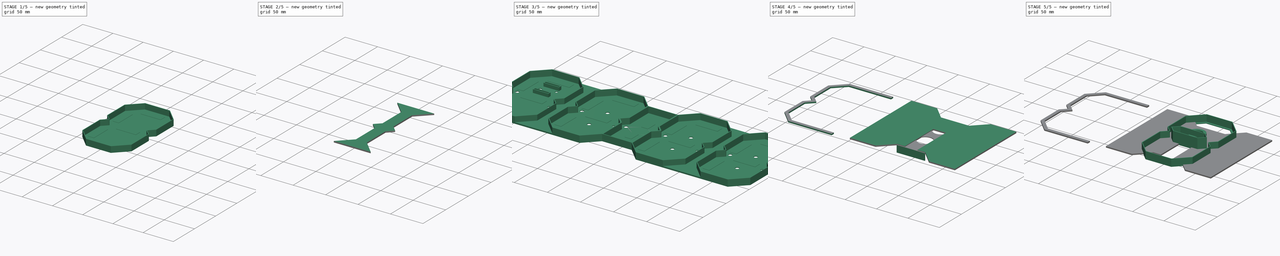
[diagram: build sequence overview — one tinted view per stage of 5, left to right]
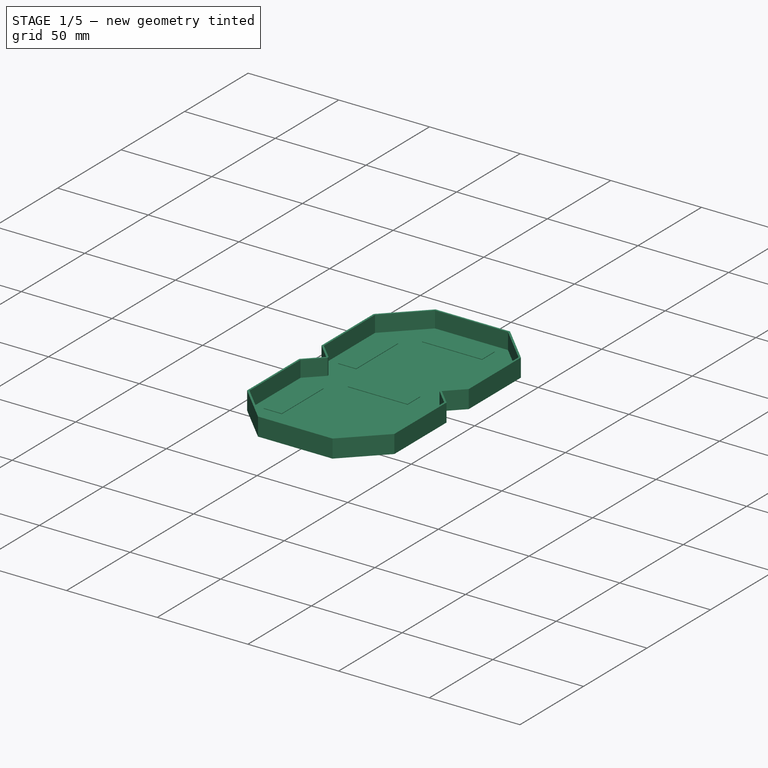
[diagram: stage 1 of 5 — iso view after this stage's code; geometry added in this stage tinted green]
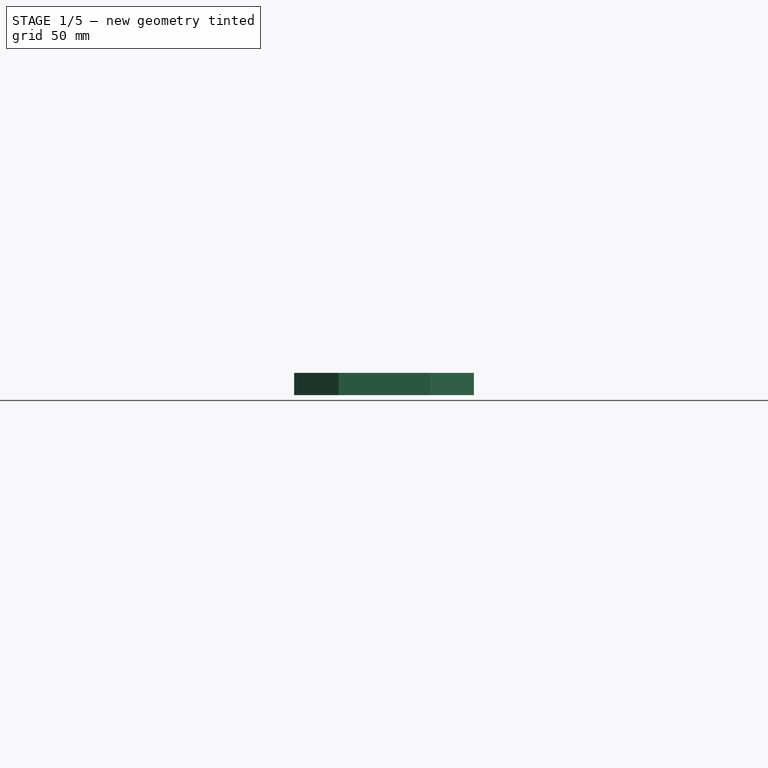
[diagram: stage 1 of 5 — front view after this stage's code; geometry added in this stage tinted green]
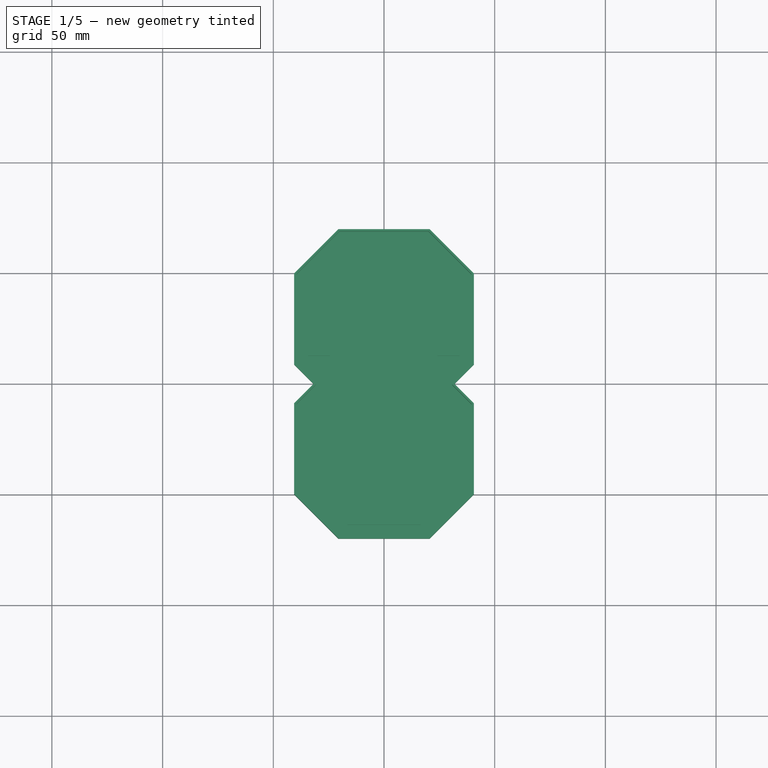
[diagram: stage 1 of 5 — top view after this stage's code; geometry added in this stage tinted green]
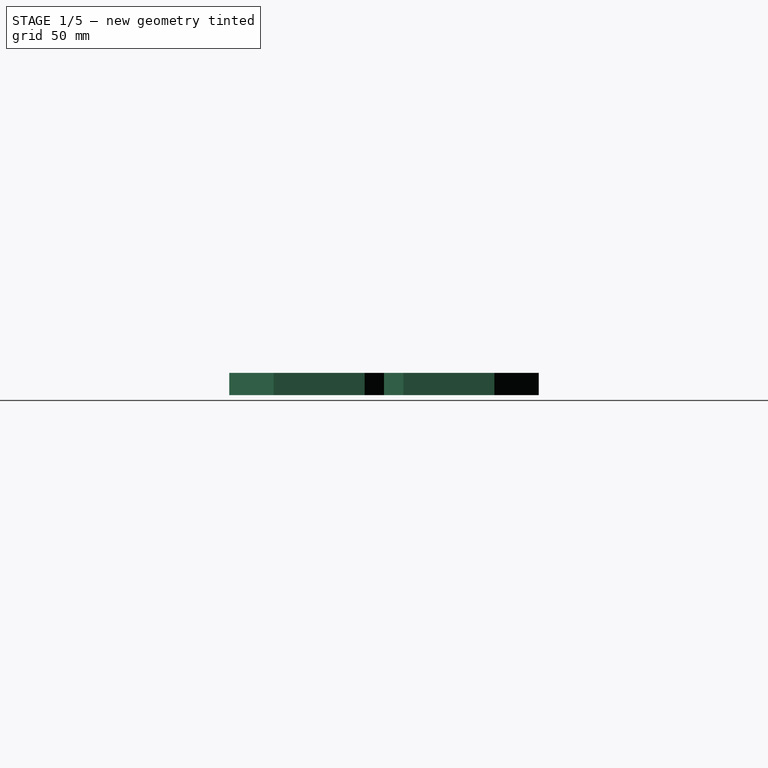
[diagram: stage 1 of 5 — right view after this stage's code; geometry added in this stage tinted green]
FCSTD DOCUMENT  (FreeCAD 0.19R24291 (Git))
Label: 7-segments-clock-16
License: All rights reserved
LicenseURL: http://en.wikipedia.org/wiki/All_rights_reserved
objects: Sketcher::SketchObject×30, PartDesign::Body×25, PartDesign::Pad×21, PartDesign::ShapeBinder×17, PartDesign::FeatureBase×11, PartDesign::Pocket×9, Part::MultiFuse×4, PartDesign::Thickness×4, PartDesign::Mirrored×4
note: 159 computed .brp shape members not serialized (recipe doc carries the construction recipe); baked Part::Feature solids carry a one-line shape summary decoded from their .brp

FEATURE [Sketcher::SketchObject] Sketch
  FullyConstrained = true
  MapMode = 5
  Support = -> [XY_Plane]
  sketch-geometry (14):
    g0: LineSegment StartX=-30 StartY=0 StartZ=0 EndX=-20 EndY=10 EndZ=0
    g1: LineSegment StartX=-20 StartY=10 StartZ=0 EndX=20 EndY=10 EndZ=0
    g2: LineSegment StartX=20 StartY=10 StartZ=0 EndX=30 EndY=0 EndZ=0
    g3: LineSegment StartX=30 StartY=0 StartZ=0 EndX=20 EndY=-10 EndZ=0
    g4: LineSegment StartX=20 StartY=-10 StartZ=0 EndX=-20 EndY=-10 EndZ=0
    g5: LineSegment StartX=-20 StartY=-10 StartZ=0 EndX=-30 EndY=0 EndZ=0
    g6: LineSegment StartX=-28.5858 StartY=5.3e-15 StartZ=0 EndX=-19.5858 EndY=9 EndZ=0
    g7: LineSegment StartX=-19.5858 StartY=9 StartZ=0 EndX=19.5858 EndY=9 EndZ=0
    g8: LineSegment StartX=19.5858 StartY=9 StartZ=0 EndX=28.5858 EndY=0 EndZ=0
    g9: LineSegment StartX=28.5858 StartY=0 StartZ=0 EndX=19.5858 EndY=-9 EndZ=0
    g10: LineSegment StartX=19.5858 StartY=-9 StartZ=0 EndX=-19.5858 EndY=-9 EndZ=0
    g11: LineSegment StartX=-19.5858 StartY=-9 StartZ=0 EndX=-28.5858 EndY=5.3e-15 EndZ=0
    g12: LineSegment StartX=-10 StartY=9 StartZ=0 EndX=-10 EndY=10 EndZ=0
    g13: LineSegment StartX=24.2426 StartY=4.34315 StartZ=0 EndX=24.9497 EndY=5.05025 EndZ=0
  constraints (41):
    c: PointOnObject(g0,g-1)
    c: Coincident(g0,g1)
    c: Horizontal(g1)
    c: Coincident(g1,g2)
    c: Coincident(g2,g3)
    c: Coincident(g3,g4)
    c: Horizontal(g4)
    c: Coincident(g4,g5)
    c: Coincident(g5,g0)
    c: Angle(g3,g4) = 2.35619
    c: Equal(g4,g1)
    c: Symmetric(g0,g3,g-1)
    c: Symmetric(g2,g0,g-2)
    c: Vertical(g3,g1)
    c: Coincident(g6,g7)
    c: Horizontal(g7)
    c: Coincident(g7,g8)
    c: Coincident(g8,g9)
    c: Coincident(g9,g10)
    c: Horizontal(g10)
    c: Coincident(g10,g11)
    c: Coincident(g11,g6)
    c: Angle(g9,g10) = 2.35619
    c: Equal(g10,g7)
    c: Vertical(g9,g7)
    c: Equal(g11,g6)
    c: Equal(g6,g8)
    c: Equal(g8,g9)
    c: Symmetric(g9,g6,g-1)
    c: PointOnObject(g12,g7)
    c: PointOnObject(g12,g1)
    c: Vertical(g12)
    c: Distance(g12) = 1
    c: PointOnObject(g13,g8)
    c: PointOnObject(g13,g2)
    c: Perpendicular(g13,g8)
    c: Equal(g12,g13)
    c: Distance(g0,g12) = 10
    c: Distance(g13,g1) = 7
    c: DistanceX(g0,g2) = 60
    c: DistanceY(g4,g0) = 20
FEATURE [PartDesign::Pad] Pad
  Direction = (1,1,1)
  Length = 18
  Length2 = 100
  Profile = -> Sketch
  Type = 0
FEATURE [PartDesign::Body] Body  label="original-middle"
  Group = -> [Sketch,Pad]
  Origin = -> Origin
  Tip = -> Pad
FEATURE [PartDesign::FeatureBase] Clone
  BaseFeature = -> Body
FEATURE [PartDesign::Body] Body001
  BaseFeature = -> Body
  Group = -> [Clone]
  Origin = -> Origin001
  Placement = pos=(-29.3,29.3,0) rot=(0,0,1;1.5708rad)
  Tip = -> Clone
FEATURE [PartDesign::FeatureBase] Clone001
  BaseFeature = -> Body
FEATURE [PartDesign::Body] Body002
  BaseFeature = -> Body
  Group = -> [Clone001]
  Origin = -> Origin002
  Placement = pos=(29.3,29.3,0) rot=(0,0,1;1.5708rad)
  Tip = -> Clone001
FEATURE [PartDesign::FeatureBase] Clone002
  BaseFeature = -> Body
FEATURE [PartDesign::Body] Body003
  BaseFeature = -> Body
  Group = -> [Clone002]
  Origin = -> Origin003
  Placement = pos=(0,58.6,0) rot=(0,0,1;0rad)
  Tip = -> Clone002
FEATURE [PartDesign::FeatureBase] Clone003
  BaseFeature = -> Body
FEATURE [PartDesign::Body] Body005
  BaseFeature = -> Body
  Group = -> [Clone003]
  Origin = -> Origin005
  Placement = pos=(-29.3,-29.3,0) rot=(0,0,1;1.5708rad)
  Tip = -> Clone003
FEATURE [PartDesign::FeatureBase] Clone004
  BaseFeature = -> Body
FEATURE [PartDesign::Body] Body006
  Group = -> [Clone004]
  Origin = -> Origin006
  Placement = pos=(0,-58.6,0) rot=(0,0,1;0rad)
  Tip = -> Clone004
FEATURE [PartDesign::FeatureBase] Clone005
  BaseFeature = -> Body
FEATURE [PartDesign::Body] Body007
  BaseFeature = -> Body
  Group = -> [Clone005]
  Origin = -> Origin007
  Placement = pos=(29.3,-29.3,0) rot=(0,0,1;1.5708rad)
  Tip = -> Clone005
FEATURE [Part::MultiFuse] Fusion  label="digit"
  Shapes = -> [Body,Body006,Body005,Body003,Body002,Body001,Body007]
FEATURE [PartDesign::Body] Body017  label="cover"
  Group = -> [ShapeBinder002,Sketch008,Pad006,Thickness001,Sketch009,Pocket002]
  Origin = -> Origin017
  Placement = pos=(-2e-15,0,19) rot=(0,1,0;3.14159rad)
  Tip = -> Pocket002
FEATURE [PartDesign::ShapeBinder] ShapeBinder003
  Support = -> [Fusion]
  TraceSupport = false
FEATURE [Sketcher::SketchObject] Sketch011
  ExternalGeometry = -> [ShapeBinder003]
  FullyConstrained = false
  MapMode = 5
  Support = -> [XY_Plane025]
  sketch-geometry (19):
    g0: LineSegment StartX=-20.5385 StartY=69.9 StartZ=0 EndX=20.5385 EndY=69.9 EndZ=0
    g1: LineSegment StartX=20.5385 StartY=69.9 StartZ=0 EndX=40.6 EndY=49.8385 EndZ=0
    g2: LineSegment StartX=40.6 StartY=49.8385 StartZ=0 EndX=40.6 EndY=8.76152 EndZ=0
    g3: LineSegment StartX=40.6 StartY=8.76152 StartZ=0 EndX=31.8385 EndY=0 EndZ=0
    g4: LineSegment StartX=31.8385 StartY=0 StartZ=0 EndX=40.6 EndY=-8.76152 EndZ=0
    g5: LineSegment StartX=40.6 StartY=-8.76152 StartZ=0 EndX=40.6 EndY=-49.8385 EndZ=0
    g6: LineSegment StartX=40.6 StartY=-49.8385 StartZ=0 EndX=20.5385 EndY=-69.9 EndZ=0
    g7: LineSegment StartX=20.5385 StartY=-69.9 StartZ=0 EndX=-20.5385 EndY=-69.9 EndZ=0
    g8: LineSegment StartX=-20.5385 StartY=-69.9 StartZ=0 EndX=-40.6 EndY=-49.8385 EndZ=0
    g9: LineSegment StartX=-40.6 StartY=-49.8385 StartZ=0 EndX=-40.6 EndY=-8.76152 EndZ=0
    g10: LineSegment StartX=-40.6 StartY=-8.76152 StartZ=0 EndX=-31.8385 EndY=0 EndZ=0
    g11: LineSegment StartX=-31.8385 StartY=0 StartZ=0 EndX=-40.6 EndY=8.76152 EndZ=0
    g12: LineSegment StartX=-40.6 StartY=8.76152 StartZ=0 EndX=-40.6 EndY=49.8385 EndZ=0
    g13: LineSegment StartX=-40.6 StartY=49.8385 StartZ=0 EndX=-20.5385 EndY=69.9 EndZ=0
    g14: LineSegment StartX=-7.19333e+06 StartY=68.6 StartZ=0 EndX=-7.19333e+06 EndY=69.9 EndZ=0
    g15: LineSegment StartX=-7.19333e+06 StartY=-68.6 StartZ=0 EndX=-7.19333e+06 EndY=-69.9 EndZ=0
    g16: LineSegment StartX=-40.6 StartY=-3.5966e+06 StartZ=0 EndX=-39.3 EndY=-3.5966e+06 EndZ=0
    g17: LineSegment StartX=-37.3501 StartY=5.51159 StartZ=0 EndX=-36.4308 EndY=6.43083 EndZ=0
    g18: LineSegment StartX=-39.3 StartY=10.8091 StartZ=0 EndX=-40.6 EndY=10.8091 EndZ=0
  constraints (55):
    c: Horizontal(g0)
    c: Coincident(g0,g1)
    c: Coincident(g1,g2)
    c: Vertical(g2)
    c: Coincident(g2,g3)
    c: PointOnObject(g3,g-1)
    c: Coincident(g3,g4)
    c: Coincident(g4,g5)
    c: Vertical(g5)
    c: Coincident(g5,g6)
    c: Coincident(g6,g7)
    c: Horizontal(g7)
    c: Coincident(g7,g8)
    c: Coincident(g8,g9)
    c: Vertical(g9)
    c: Coincident(g9,g10)
    c: Coincident(g10,g11)
    c: Coincident(g11,g12)
    c: Vertical(g12)
    c: Coincident(g12,g13)
    c: Coincident(g13,g0)
    c: Equal(g13,g1)
    c: Equal(g1,g6)
    c: Equal(g6,g8)
    c: Equal(g9,g5)
    c: Equal(g5,g7)
    c: Equal(g7,g0)
    c: Equal(g0,g2)
    c: Equal(g2,g12)
    c: Equal(g11,g3)
    c: Vertical(g11,g9)
    c: Vertical(g4,g2)
    c: Symmetric(g3,g10,g-2)
    c: Symmetric(g4,g9,g-2)
    c: Angle(g11) = 2.35619
    c: Equal(g11,g10)
    c: PointOnObject(g14,g-3)
    c: Vertical(g14)
    c: PointOnObject(g15,g-12)
    c: PointOnObject(g15,g7)
    c: Vertical(g15)
    c: Equal(g15,g14)
    c: PointOnObject(g16,g12)
    c: PointOnObject(g16,g-5)
    c: Horizontal(g16)
    c: Equal(g14,g16)
    c: Angle(g13) = 0.785398
    c: PointOnObject(g17,g11)
    c: PointOnObject(g17,g-6)
    c: PointOnObject(g18,g-5)
    c: PointOnObject(g18,g12)
    c: Horizontal(g18)
    c: Perpendicular(g-6,g17)
    c: Equal(g17,g18)
    c: DistanceX(g18,g18) = 1.3
FEATURE [PartDesign::Pad] Pad008
  Direction = (1,1,1)
  Length = 10
  Length2 = 100
  Profile = -> Sketch011
  Type = 0
FEATURE [PartDesign::Thickness] Thickness002
  Base = -> Pad008 [Face16]
  BaseFeature = -> Pad008
  Intersection = false
  Join = 0
  Mode = 0
  Reversed = true
  SupportTransform = false
  Value = 1
FEATURE [Sketcher::SketchObject] Sketch012
  ExternalGeometry = -> [ShapeBinder003]
  FullyConstrained = true
  MapMode = 5
  Placement = pos=(0,0,1) rot=(0,0,1;0rad)
  Support = -> [Thickness002]
  sketch-geometry (34):
    g0: LineSegment StartX=-29.3 StartY=48.8858 StartZ=0 EndX=-29.3 EndY=-48.8858 EndZ=0
    g1: LineSegment StartX=29.3 StartY=48.8858 StartZ=0 EndX=29.3 EndY=-48.8858 EndZ=0
    g2: LineSegment StartX=-19.5858 StartY=58.6 StartZ=0 EndX=19.5858 EndY=58.6 EndZ=0
    g3: LineSegment StartX=-19.5858 StartY=-58.6 StartZ=0 EndX=19.5858 EndY=-58.6 EndZ=0
    g4: LineSegment StartX=-16.5 StartY=63.6 StartZ=0 EndX=16.5 EndY=63.6 EndZ=0
    g5: LineSegment StartX=16.5 StartY=63.6 StartZ=0 EndX=16.5 EndY=53.6 EndZ=0
    g6: LineSegment StartX=16.5 StartY=53.6 StartZ=0 EndX=-16.5 EndY=53.6 EndZ=0
    g7: LineSegment StartX=-16.5 StartY=53.6 StartZ=0 EndX=-16.5 EndY=63.6 EndZ=0
    g8: LineSegment StartX=24.3 StartY=45.8 StartZ=0 EndX=34.3 EndY=45.8 EndZ=0
    g9: LineSegment StartX=34.3 StartY=45.8 StartZ=0 EndX=34.3 EndY=12.8 EndZ=0
    g10: LineSegment StartX=34.3 StartY=12.8 StartZ=0 EndX=24.3 EndY=12.8 EndZ=0
    g11: LineSegment StartX=24.3 StartY=12.8 StartZ=0 EndX=24.3 EndY=45.8 EndZ=0
    g12: LineSegment StartX=24.3 StartY=-12.8 StartZ=0 EndX=34.3 EndY=-12.8 EndZ=0
    g13: LineSegment StartX=34.3 StartY=-12.8 StartZ=0 EndX=34.3 EndY=-45.8 EndZ=0
    g14: LineSegment StartX=34.3 StartY=-45.8 StartZ=0 EndX=24.3 EndY=-45.8 EndZ=0
    g15: LineSegment StartX=24.3 StartY=-45.8 StartZ=0 EndX=24.3 EndY=-12.8 EndZ=0
    g16: LineSegment StartX=-34.3 StartY=-12.8 StartZ=0 EndX=-24.3 EndY=-12.8 EndZ=0
    g17: LineSegment StartX=-24.3 StartY=-12.8 StartZ=0 EndX=-24.3 EndY=-45.8 EndZ=0
    g18: LineSegment StartX=-24.3 StartY=-45.8 StartZ=0 EndX=-34.3 EndY=-45.8 EndZ=0
    g19: LineSegment StartX=-34.3 StartY=-45.8 StartZ=0 EndX=-34.3 EndY=-12.8 EndZ=0
    g20: LineSegment StartX=-16.5 StartY=-53.6 StartZ=0 EndX=16.5 EndY=-53.6 EndZ=0
    g21: LineSegment StartX=16.5 StartY=-53.6 StartZ=0 EndX=16.5 EndY=-63.6 EndZ=0
    g22: LineSegment StartX=16.5 StartY=-63.6 StartZ=0 EndX=-16.5 EndY=-63.6 EndZ=0
    g23: LineSegment StartX=-16.5 StartY=-63.6 StartZ=0 EndX=-16.5 EndY=-53.6 EndZ=0
    g24: LineSegment StartX=-34.3 StartY=45.8 StartZ=0 EndX=-24.3 EndY=45.8 EndZ=0
    g25: LineSegment StartX=-24.3 StartY=45.8 StartZ=0 EndX=-24.3 EndY=12.8 EndZ=0
    g26: LineSegment StartX=-24.3 StartY=12.8 StartZ=0 EndX=-34.3 EndY=12.8 EndZ=0
    g27: LineSegment StartX=-34.3 StartY=12.8 StartZ=0 EndX=-34.3 EndY=45.8 EndZ=0
    g28: LineSegment StartX=-16.5 StartY=5 StartZ=0 EndX=16.5 EndY=5 EndZ=0
    g29: LineSegment StartX=16.5 StartY=5 StartZ=0 EndX=16.5 EndY=-5 EndZ=0
    g30: LineSegment StartX=16.5 StartY=-5 StartZ=0 EndX=-16.5 EndY=-5 EndZ=0
    g31: LineSegment StartX=-16.5 StartY=-5 StartZ=0 EndX=-16.5 EndY=5 EndZ=0
    g32: LineSegment StartX=-38.3 StartY=-29.3 StartZ=0 EndX=38.3 EndY=-29.3 EndZ=0
    g33: LineSegment StartX=38.3 StartY=29.3 StartZ=0 EndX=-38.3 EndY=29.3 EndZ=0
  constraints (93):
    c: Symmetric(g-6,g-5,g0)
    c: Symmetric(g-4,g-3,g1)
    c: Horizontal(g1,g0)
    c: Horizontal(g0,g-6)
    c: Horizontal(g-14,g0)
    c: Horizontal(g0,g1)
    c: Horizontal(g2)
    c: Vertical(g3,g-16)
    c: Vertical(g3,g-15)
    c: Vertical(g-15,g2)
    c: Symmetric(g-15,g-16,g3)
    c: Symmetric(g-8,g-7,g2)
    c: Coincident(g4,g5)
    c: Coincident(g5,g6)
    c: Coincident(g6,g7)
    c: Coincident(g7,g4)
    c: Horizontal(g4)
    c: Horizontal(g6)
    c: Vertical(g7)
    c: Coincident(g8,g9)
    c: Coincident(g9,g10)
    c: Coincident(g10,g11)
    c: Coincident(g11,g8)
    c: Horizontal(g10)
    c: Vertical(g9)
    c: Coincident(g12,g13)
    c: Coincident(g13,g14)
    c: Coincident(g14,g15)
    c: Coincident(g15,g12)
    c: Horizontal(g12)
    c: Horizontal(g14)
    c: Vertical(g13)
    c: Vertical(g15)
    c: Coincident(g16,g17)
    c: Coincident(g17,g18)
    c: Coincident(g18,g19)
    c: Coincident(g19,g16)
    c: Horizontal(g16)
    c: Horizontal(g18)
    c: Vertical(g17)
    c: Coincident(g20,g21)
    c: Coincident(g21,g22)
    c: Coincident(g22,g23)
    c: Coincident(g23,g20)
    c: Horizontal(g22)
    c: Vertical(g21)
    c: DistanceX(g4,g4) = 33
    c: DistanceY(g7,g7) = 10
    c: Coincident(g24,g25)
    c: Coincident(g25,g26)
    c: Coincident(g26,g27)
    c: Coincident(g27,g24)
    c: Horizontal(g24)
    c: Vertical(g25)
    c: Vertical(g27)
    c: Equal(g6,g25)
    c: Equal(g25,g11)
    c: Equal(g11,g15)
    c: Equal(g15,g17)
    c: Equal(g17,g20)
    c: Equal(g7,g24)
    c: Equal(g24,g8)
    c: Equal(g8,g12)
    c: Equal(g12,g16)
    c: Equal(g16,g21)
    c: Coincident(g28,g29)
    c: Coincident(g29,g30)
    c: Coincident(g30,g31)
    c: Coincident(g31,g28)
    c: Horizontal(g30)
    c: Vertical(g29)
    c: Equal(g28,g4)
    c: Equal(g7,g31)
    c: Symmetric(g8,g8,g1)
    c: Vertical(g10,g12)
    c: Symmetric(g26,g25,g0)
    c: Vertical(g25,g16)
    c: Symmetric(g20,g22,g3)
    c: Symmetric(g20,g20,g-2)
    c: Vertical(g20,g5)
    c: Symmetric(g5,g4,g2)
    c: PointOnObject(g32,g-14)
    c: PointOnObject(g32,g-12)
    c: PointOnObject(g33,g-3)
    c: PointOnObject(g33,g-6)
    c: Symmetric(g-14,g-14,g32)
    c: Symmetric(g-6,g-6,g33)
    c: Symmetric(g8,g10,g33)
    c: Horizontal(g8,g24)
    c: Symmetric(g16,g18,g32)
    c: Horizontal(g16,g12)
    c: Symmetric(g28,g28,g-2)
    c: Symmetric(g30,g28,g-1)
FEATURE [PartDesign::Pad] Pad009
  BaseFeature = -> Thickness002
  Direction = (1,1,1)
  Length = 0.3
  Length2 = 100
  Profile = -> Sketch012
  Type = 0
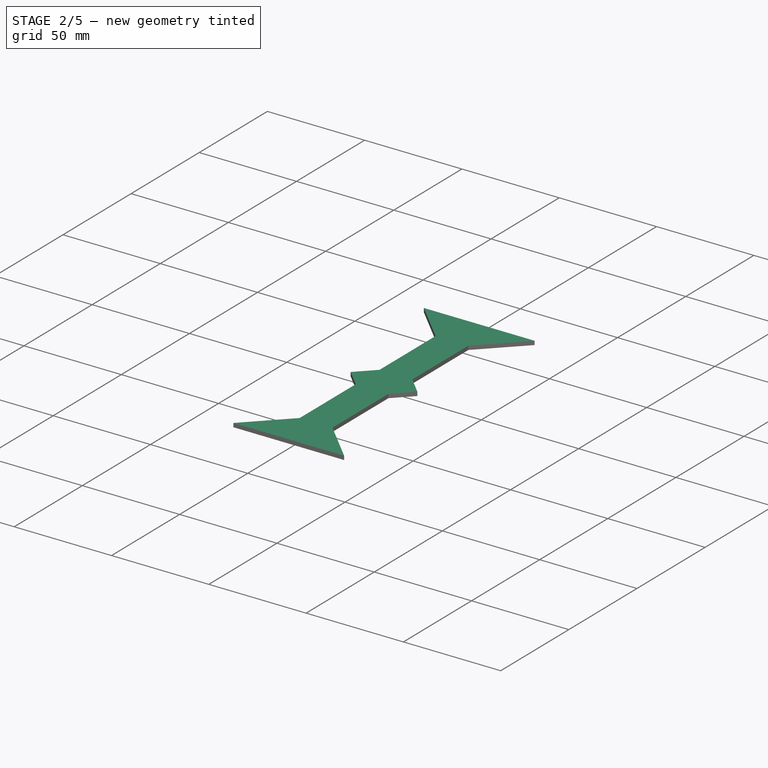
[diagram: stage 2 of 5 — iso view after this stage's code; geometry added in this stage tinted green]
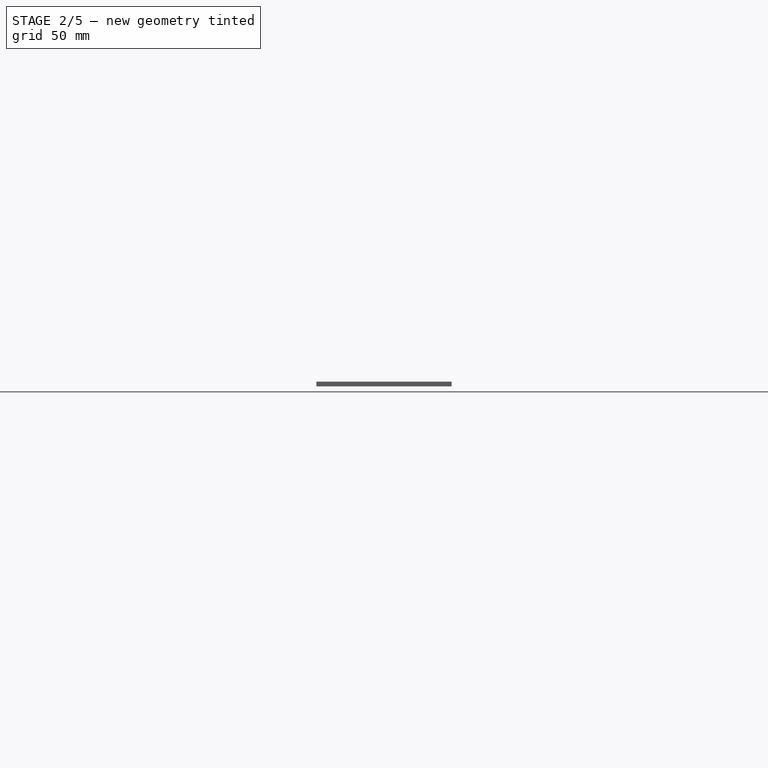
[diagram: stage 2 of 5 — front view after this stage's code; geometry added in this stage tinted green]
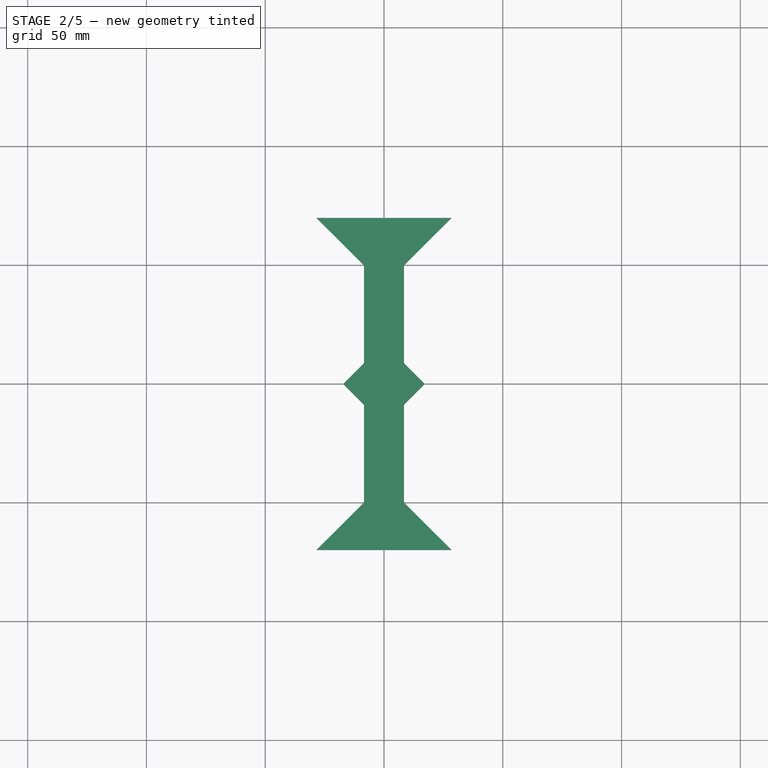
[diagram: stage 2 of 5 — top view after this stage's code; geometry added in this stage tinted green]
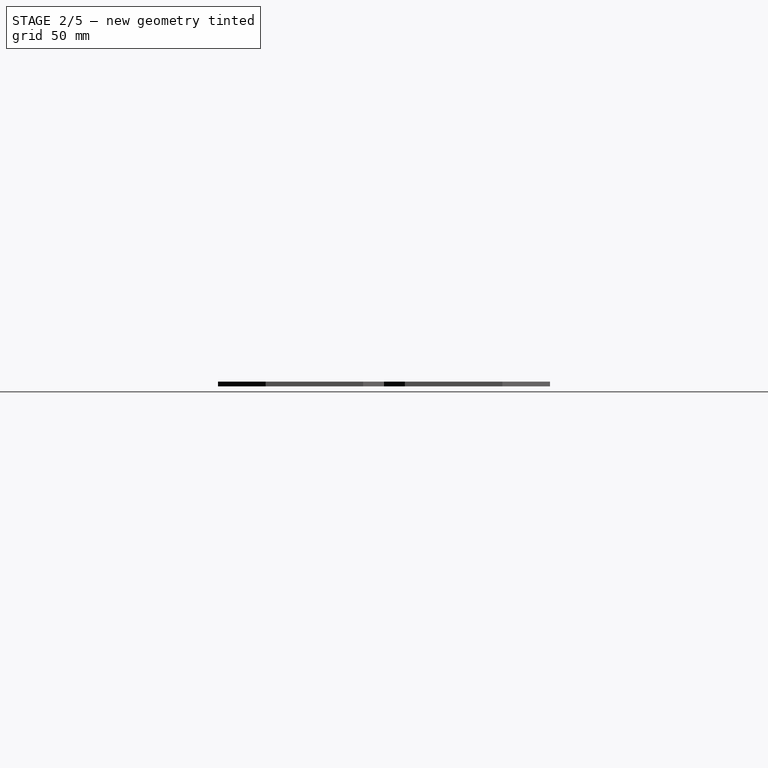
[diagram: stage 2 of 5 — right view after this stage's code; geometry added in this stage tinted green]
FEATURE [PartDesign::ShapeBinder] ShapeBinder
  Support = -> [Fusion]
  TraceSupport = false
FEATURE [Sketcher::SketchObject] Sketch001
  ExternalGeometry = -> [ShapeBinder]
  FullyConstrained = false
  MapMode = 5
  Support = -> [XY_Plane008]
  sketch-geometry (19):
    g0: LineSegment StartX=-20.5385 StartY=69.9 StartZ=0 EndX=20.5385 EndY=69.9 EndZ=0
    g1: LineSegment StartX=20.5385 StartY=69.9 StartZ=0 EndX=40.6 EndY=49.8385 EndZ=0
    g2: LineSegment StartX=40.6 StartY=49.8385 StartZ=0 EndX=40.6 EndY=8.76152 EndZ=0
    g3: LineSegment StartX=40.6 StartY=8.76152 StartZ=0 EndX=31.8385 EndY=0 EndZ=0
    g4: LineSegment StartX=31.8385 StartY=0 StartZ=0 EndX=40.6 EndY=-8.76152 EndZ=0
    g5: LineSegment StartX=40.6 StartY=-8.76152 StartZ=0 EndX=40.6 EndY=-49.8385 EndZ=0
    g6: LineSegment StartX=40.6 StartY=-49.8385 StartZ=0 EndX=20.5385 EndY=-69.9 EndZ=0
    g7: LineSegment StartX=20.5385 StartY=-69.9 StartZ=0 EndX=-20.5385 EndY=-69.9 EndZ=0
    g8: LineSegment StartX=-20.5385 StartY=-69.9 StartZ=0 EndX=-40.6 EndY=-49.8385 EndZ=0
    g9: LineSegment StartX=-40.6 StartY=-49.8385 StartZ=0 EndX=-40.6 EndY=-8.76152 EndZ=0
    g10: LineSegment StartX=-40.6 StartY=-8.76152 StartZ=0 EndX=-31.8385 EndY=0 EndZ=0
    g11: LineSegment StartX=-31.8385 StartY=0 StartZ=0 EndX=-40.6 EndY=8.76152 EndZ=0
    g12: LineSegment StartX=-40.6 StartY=8.76152 StartZ=0 EndX=-40.6 EndY=49.8385 EndZ=0
    g13: LineSegment StartX=-40.6 StartY=49.8385 StartZ=0 EndX=-20.5385 EndY=69.9 EndZ=0
    g14: LineSegment StartX=-7.19333e+06 StartY=68.6 StartZ=0 EndX=-7.19333e+06 EndY=69.9 EndZ=0
    g15: LineSegment StartX=-7.19333e+06 StartY=-68.6 StartZ=0 EndX=-7.19333e+06 EndY=-69.9 EndZ=0
    g16: LineSegment StartX=-40.6 StartY=-3.5966e+06 StartZ=0 EndX=-39.3 EndY=-3.5966e+06 EndZ=0
    g17: LineSegment StartX=-33.1527 StartY=1.3142 StartZ=0 EndX=-32.2334 EndY=2.23344 EndZ=0
    g18: LineSegment StartX=-39.3 StartY=11.403 StartZ=0 EndX=-40.6 EndY=11.403 EndZ=0
  constraints (55):
    c: Horizontal(g0)
    c: Coincident(g0,g1)
    c: Coincident(g1,g2)
    c: Vertical(g2)
    c: Coincident(g2,g3)
    c: PointOnObject(g3,g-1)
    c: Coincident(g3,g4)
    c: Coincident(g4,g5)
    c: Vertical(g5)
    c: Coincident(g5,g6)
    c: Coincident(g6,g7)
    c: Horizontal(g7)
    c: Coincident(g7,g8)
    c: Coincident(g8,g9)
    c: Vertical(g9)
    c: Coincident(g9,g10)
    c: Coincident(g10,g11)
    c: Coincident(g11,g12)
    c: Vertical(g12)
    c: Coincident(g12,g13)
    c: Coincident(g13,g0)
    c: Equal(g13,g1)
    c: Equal(g1,g6)
    c: Equal(g6,g8)
    c: Equal(g9,g5)
    c: Equal(g5,g7)
    c: Equal(g7,g0)
    c: Equal(g0,g2)
    c: Equal(g2,g12)
    c: Equal(g11,g3)
    c: Vertical(g11,g9)
    c: Vertical(g4,g2)
    c: Symmetric(g3,g10,g-2)
    c: Symmetric(g4,g9,g-2)
    c: Angle(g11) = 2.35619
    c: Equal(g11,g10)
    c: PointOnObject(g14,g-3)
    c: Vertical(g14)
    c: PointOnObject(g15,g-12)
    c: PointOnObject(g15,g7)
    c: Vertical(g15)
    c: Equal(g15,g14)
    c: PointOnObject(g16,g12)
    c: PointOnObject(g16,g-5)
    c: Horizontal(g16)
    c: Equal(g14,g16)
    c: Angle(g13) = 0.785398
    c: PointOnObject(g17,g11)
    c: PointOnObject(g17,g-6)
    c: PointOnObject(g18,g-5)
    c: PointOnObject(g18,g12)
    c: Horizontal(g18)
    c: Perpendicular(g-6,g17)
    c: Equal(g17,g18)
    c: DistanceX(g18,g18) = 1.3
FEATURE [PartDesign::Pad] Pad001
  Direction = (1,1,1)
  Length = 10
  Length2 = 100
  Profile = -> Sketch001
  Type = 0
FEATURE [PartDesign::Thickness] Thickness
  Base = -> Pad001 [Face16]
  BaseFeature = -> Pad001
  Intersection = false
  Join = 0
  Mode = 0
  Reversed = true
  SupportTransform = false
  Value = 1
FEATURE [Sketcher::SketchObject] Sketch002
  ExternalGeometry = -> [ShapeBinder]
  FullyConstrained = true
  MapMode = 5
  Placement = pos=(0,0,1) rot=(0,0,1;0rad)
  Support = -> [Thickness]
  sketch-geometry (34):
    g0: LineSegment StartX=-29.3 StartY=48.8858 StartZ=0 EndX=-29.3 EndY=-48.8858 EndZ=0
    g1: LineSegment StartX=29.3 StartY=48.8858 StartZ=0 EndX=29.3 EndY=-48.8858 EndZ=0
    g2: LineSegment StartX=-19.5858 StartY=58.6 StartZ=0 EndX=19.5858 EndY=58.6 EndZ=0
    g3: LineSegment StartX=-19.5858 StartY=-58.6 StartZ=0 EndX=19.5858 EndY=-58.6 EndZ=0
    g4: LineSegment StartX=-16.5 StartY=63.6 StartZ=0 EndX=16.5 EndY=63.6 EndZ=0
    g5: LineSegment StartX=16.5 StartY=63.6 StartZ=0 EndX=16.5 EndY=53.6 EndZ=0
    g6: LineSegment StartX=16.5 StartY=53.6 StartZ=0 EndX=-16.5 EndY=53.6 EndZ=0
    g7: LineSegment StartX=-16.5 StartY=53.6 StartZ=0 EndX=-16.5 EndY=63.6 EndZ=0
    g8: LineSegment StartX=24.3 StartY=45.8 StartZ=0 EndX=34.3 EndY=45.8 EndZ=0
    g9: LineSegment StartX=34.3 StartY=45.8 StartZ=0 EndX=34.3 EndY=12.8 EndZ=0
    g10: LineSegment StartX=34.3 StartY=12.8 StartZ=0 EndX=24.3 EndY=12.8 EndZ=0
    g11: LineSegment StartX=24.3 StartY=12.8 StartZ=0 EndX=24.3 EndY=45.8 EndZ=0
    g12: LineSegment StartX=24.3 StartY=-12.8 StartZ=0 EndX=34.3 EndY=-12.8 EndZ=0
    g13: LineSegment StartX=34.3 StartY=-12.8 StartZ=0 EndX=34.3 EndY=-45.8 EndZ=0
    g14: LineSegment StartX=34.3 StartY=-45.8 StartZ=0 EndX=24.3 EndY=-45.8 EndZ=0
    g15: LineSegment StartX=24.3 StartY=-45.8 StartZ=0 EndX=24.3 EndY=-12.8 EndZ=0
    g16: LineSegment StartX=-34.3 StartY=-12.8 StartZ=0 EndX=-24.3 EndY=-12.8 EndZ=0
    g17: LineSegment StartX=-24.3 StartY=-12.8 StartZ=0 EndX=-24.3 EndY=-45.8 EndZ=0
    g18: LineSegment StartX=-24.3 StartY=-45.8 StartZ=0 EndX=-34.3 EndY=-45.8 EndZ=0
    g19: LineSegment StartX=-34.3 StartY=-45.8 StartZ=0 EndX=-34.3 EndY=-12.8 EndZ=0
    g20: LineSegment StartX=-16.5 StartY=-53.6 StartZ=0 EndX=16.5 EndY=-53.6 EndZ=0
    g21: LineSegment StartX=16.5 StartY=-53.6 StartZ=0 EndX=16.5 EndY=-63.6 EndZ=0
    g22: LineSegment StartX=16.5 StartY=-63.6 StartZ=0 EndX=-16.5 EndY=-63.6 EndZ=0
    g23: LineSegment StartX=-16.5 StartY=-63.6 StartZ=0 EndX=-16.5 EndY=-53.6 EndZ=0
    g24: LineSegment StartX=-34.3 StartY=45.8 StartZ=0 EndX=-24.3 EndY=45.8 EndZ=0
    g25: LineSegment StartX=-24.3 StartY=45.8 StartZ=0 EndX=-24.3 EndY=12.8 EndZ=0
    g26: LineSegment StartX=-24.3 StartY=12.8 StartZ=0 EndX=-34.3 EndY=12.8 EndZ=0
    g27: LineSegment StartX=-34.3 StartY=12.8 StartZ=0 EndX=-34.3 EndY=45.8 EndZ=0
    g28: LineSegment StartX=-16.5 StartY=5 StartZ=0 EndX=16.5 EndY=5 EndZ=0
    g29: LineSegment StartX=16.5 StartY=5 StartZ=0 EndX=16.5 EndY=-5 EndZ=0
    g30: LineSegment StartX=16.5 StartY=-5 StartZ=0 EndX=-16.5 EndY=-5 EndZ=0
    g31: LineSegment StartX=-16.5 StartY=-5 StartZ=0 EndX=-16.5 EndY=5 EndZ=0
    g32: LineSegment StartX=-38.3 StartY=-29.3 StartZ=0 EndX=38.3 EndY=-29.3 EndZ=0
    g33: LineSegment StartX=38.3 StartY=29.3 StartZ=0 EndX=-38.3 EndY=29.3 EndZ=0
  constraints (93):
    c: Symmetric(g-6,g-5,g0)
    c: Symmetric(g-4,g-3,g1)
    c: Horizontal(g1,g0)
    c: Horizontal(g0,g-6)
    c: Horizontal(g-14,g0)
    c: Horizontal(g0,g1)
    c: Horizontal(g2)
    c: Vertical(g3,g-16)
    c: Vertical(g3,g-15)
    c: Vertical(g-15,g2)
    c: Symmetric(g-15,g-16,g3)
    c: Symmetric(g-8,g-7,g2)
    c: Coincident(g4,g5)
    c: Coincident(g5,g6)
    c: Coincident(g6,g7)
    c: Coincident(g7,g4)
    c: Horizontal(g4)
    c: Horizontal(g6)
    c: Vertical(g7)
    c: Coincident(g8,g9)
    c: Coincident(g9,g10)
    c: Coincident(g10,g11)
    c: Coincident(g11,g8)
    c: Horizontal(g10)
    c: Vertical(g9)
    c: Coincident(g12,g13)
    c: Coincident(g13,g14)
    c: Coincident(g14,g15)
    c: Coincident(g15,g12)
    c: Horizontal(g12)
    c: Horizontal(g14)
    c: Vertical(g13)
    c: Vertical(g15)
    c: Coincident(g16,g17)
    c: Coincident(g17,g18)
    c: Coincident(g18,g19)
    c: Coincident(g19,g16)
    c: Horizontal(g16)
    c: Horizontal(g18)
    c: Vertical(g17)
    c: Coincident(g20,g21)
    c: Coincident(g21,g22)
    c: Coincident(g22,g23)
    c: Coincident(g23,g20)
    c: Horizontal(g22)
    c: Vertical(g21)
    c: DistanceX(g4,g4) = 33
    c: DistanceY(g7,g7) = 10
    c: Coincident(g24,g25)
    c: Coincident(g25,g26)
    c: Coincident(g26,g27)
    c: Coincident(g27,g24)
    c: Horizontal(g24)
    c: Vertical(g25)
    c: Vertical(g27)
    c: Equal(g6,g25)
    c: Equal(g25,g11)
    c: Equal(g11,g15)
    c: Equal(g15,g17)
    c: Equal(g17,g20)
    c: Equal(g7,g24)
    c: Equal(g24,g8)
    c: Equal(g8,g12)
    c: Equal(g12,g16)
    c: Equal(g16,g21)
    c: Coincident(g28,g29)
    c: Coincident(g29,g30)
    c: Coincident(g30,g31)
    c: Coincident(g31,g28)
    c: Horizontal(g30)
    c: Vertical(g29)
    c: Equal(g28,g4)
    c: Equal(g7,g31)
    c: Symmetric(g8,g8,g1)
    c: Vertical(g10,g12)
    c: Symmetric(g26,g25,g0)
    c: Vertical(g25,g16)
    c: Symmetric(g20,g22,g3)
    c: Symmetric(g20,g20,g-2)
    c: Vertical(g20,g5)
    c: Symmetric(g5,g4,g2)
    c: PointOnObject(g32,g-14)
    c: PointOnObject(g32,g-12)
    c: PointOnObject(g33,g-3)
    c: PointOnObject(g33,g-6)
    c: Symmetric(g-14,g-14,g32)
    c: Symmetric(g-6,g-6,g33)
    c: Symmetric(g8,g10,g33)
    c: Horizontal(g8,g24)
    c: Symmetric(g16,g18,g32)
    c: Horizontal(g16,g12)
    c: Symmetric(g28,g28,g-2)
    c: Symmetric(g30,g28,g-1)
FEATURE [PartDesign::Pad] Pad002
  BaseFeature = -> Thickness
  Direction = (1,1,1)
  Length = 0.3
  Length2 = 100
  Profile = -> Sketch002
  Type = 0
FEATURE [Sketcher::SketchObject] Sketch003
  ExternalGeometry = -> [ShapeBinder]
  FullyConstrained = true
  MapMode = 5
  Placement = pos=(0,0,1) rot=(0,0,1;0rad)
  Support = -> [Pad002]
  sketch-geometry (13):
    g0: LineSegment StartX=-19.3 StartY=29.3 StartZ=0 EndX=19.3 EndY=29.3 EndZ=0
    g1: Circle CenterX=-29.3 CenterY=6.71421 CenterZ=0 NormalX=0 NormalY=0 NormalZ=1 AngleXU=0 Radius=2.75
    g2: Circle CenterX=-10.75 CenterY=29.3 CenterZ=0 NormalX=0 NormalY=0 NormalZ=1 AngleXU=0 Radius=2.75
    g3: Circle CenterX=10.75 CenterY=34.3 CenterZ=0 NormalX=0 NormalY=0 NormalZ=1 AngleXU=0 Radius=2
    g4: Circle CenterX=29.3 CenterY=-6.71421 CenterZ=0 NormalX=0 NormalY=0 NormalZ=1 AngleXU=0 Radius=2.75
    g5: LineSegment StartX=-10.75 StartY=42.3 StartZ=0 EndX=10.75 EndY=42.3 EndZ=0
    g6: LineSegment StartX=10.75 StartY=42.3 StartZ=0 EndX=10.75 EndY=39.3 EndZ=0
    g7: LineSegment StartX=10.75 StartY=39.3 StartZ=0 EndX=-10.75 EndY=39.3 EndZ=0
    g8: LineSegment StartX=-10.75 StartY=39.3 StartZ=0 EndX=-10.75 EndY=42.3 EndZ=0
    g9: LineSegment StartX=-10.75 StartY=19.3 StartZ=0 EndX=10.75 EndY=19.3 EndZ=0
    g10: LineSegment StartX=10.75 StartY=19.3 StartZ=0 EndX=10.75 EndY=16.3 EndZ=0
    g11: LineSegment StartX=10.75 StartY=16.3 StartZ=0 EndX=-10.75 EndY=16.3 EndZ=0
    g12: LineSegment StartX=-10.75 StartY=16.3 StartZ=0 EndX=-10.75 EndY=19.3 EndZ=0
  constraints (38):
    c: Vertical(g0,g-3)
    c: Vertical(g0,g-3)
    c: Symmetric(g-3,g-4,g0)
    c: Radius(g1) = 2.75
    c: Equal(g1,g2)
    c: Equal(g2,g4)
    c: Radius(g3) = 2
    c: Coincident(g5,g6)
    c: Coincident(g6,g7)
    c: Coincident(g7,g8)
    c: Coincident(g8,g5)
    c: Horizontal(g5)
    c: Horizontal(g7)
    c: Vertical(g6)
    c: Vertical(g8)
    c: Coincident(g9,g10)
    c: Coincident(g10,g11)
    c: Coincident(g11,g12)
    c: Coincident(g12,g9)
    c: Horizontal(g11)
    c: Vertical(g10)
    c: Vertical(g12)
    c: Equal(g9,g7)
    c: Equal(g6,g10)
    c: Vertical(g1,g-6)
    c: Distance(g1,g-6) = 6
    c: Vertical(g4,g-8)
    c: Distance(g4,g-8) = 6
    c: DistanceY(g9,g0) = 10
    c: DistanceY(g0,g6) = 10
    c: Symmetric(g9,g9,g-2)
    c: Vertical(g6,g9)
    c: DistanceX(g5,g5) = 21.5
    c: DistanceY(g8,g8) = 3
    c: PointOnObject(g2,g0)
    c: Vertical(g3,g6)
    c: Vertical(g2,g7)
    c: DistanceY(g0,g3) = 5
FEATURE [PartDesign::Pocket] Pocket
  BaseFeature = -> Pad002
  Length = 5
  Length2 = 100
  Profile = -> Sketch003
  Type = 1
FEATURE [Sketcher::SketchObject] Sketch004
  ExternalGeometry = -> [Pocket]
  FullyConstrained = true
  MapMode = 5
  Placement = pos=(0,0,1) rot=(0,0,1;0rad)
  Support = -> [Pocket]
  sketch-geometry (16):
    g0: LineSegment StartX=-10.75 StartY=42.3 StartZ=0 EndX=10.75 EndY=42.3 EndZ=0
    g1: LineSegment StartX=10.75 StartY=42.3 StartZ=0 EndX=10.75 EndY=39.3 EndZ=0
    g2: LineSegment StartX=10.75 StartY=39.3 StartZ=0 EndX=-10.75 EndY=39.3 EndZ=0
    g3: LineSegment StartX=-10.75 StartY=39.3 StartZ=0 EndX=-10.75 EndY=42.3 EndZ=0
    g4: LineSegment StartX=-10.75 StartY=19.3 StartZ=0 EndX=10.75 EndY=19.3 EndZ=0
    g5: LineSegment StartX=10.75 StartY=19.3 StartZ=0 EndX=10.75 EndY=16.3 EndZ=0
    g6: LineSegment StartX=10.75 StartY=16.3 StartZ=0 EndX=-10.75 EndY=16.3 EndZ=0
    g7: LineSegment StartX=-10.75 StartY=16.3 StartZ=0 EndX=-10.75 EndY=19.3 EndZ=0
    g8: LineSegment StartX=-11.75 StartY=43.3 StartZ=0 EndX=11.75 EndY=43.3 EndZ=0
    g9: LineSegment StartX=11.75 StartY=43.3 StartZ=0 EndX=11.75 EndY=38.3 EndZ=0
    g10: LineSegment StartX=11.75 StartY=38.3 StartZ=0 EndX=-11.75 EndY=38.3 EndZ=0
    g11: LineSegment StartX=-11.75 StartY=38.3 StartZ=0 EndX=-11.75 EndY=43.3 EndZ=0
    g12: LineSegment StartX=-11.75 StartY=20.3 StartZ=0 EndX=11.75 EndY=20.3 EndZ=0
    g13: LineSegment StartX=11.75 StartY=20.3 StartZ=0 EndX=11.75 EndY=15.3 EndZ=0
    g14: LineSegment StartX=11.75 StartY=15.3 StartZ=0 EndX=-11.75 EndY=15.3 EndZ=0
    g15: LineSegment StartX=-11.75 StartY=15.3 StartZ=0 EndX=-11.75 EndY=20.3 EndZ=0
  constraints (42):
    c: Coincident(g0,g1)
    c: Coincident(g1,g2)
    c: Coincident(g2,g3)
    c: Coincident(g3,g0)
    c: Horizontal(g0)
    c: Horizontal(g2)
    c: Vertical(g1)
    c: Vertical(g3)
    c: Coincident(g0,g-3)
    c: Coincident(g1,g-4)
    c: Coincident(g4,g5)
    c: Coincident(g5,g6)
    c: Coincident(g6,g7)
    c: Coincident(g7,g4)
    c: Horizontal(g4)
    c: Horizontal(g6)
    c: Vertical(g5)
    c: Vertical(g7)
    c: Coincident(g4,g-5)
    c: Coincident(g5,g-6)
    c: Coincident(g8,g9)
    c: Coincident(g9,g10)
    c: Coincident(g10,g11)
    c: Coincident(g11,g8)
    c: Horizontal(g8)
    c: Vertical(g9)
    c: Vertical(g11)
    c: Coincident(g12,g13)
    c: Coincident(g13,g14)
    c: Coincident(g14,g15)
    c: Coincident(g15,g12)
    c: Horizontal(g14)
    c: Vertical(g13)
    c: Vertical(g15)
    c: Equal(g12,g10)
    c: Equal(g9,g13)
    c: Symmetric(g12,g12,g-2)
    c: Symmetric(g10,g9,g-2)
    c: DistanceY(g0,g8) = 1
    c: DistanceY(g9,g1) = 1
    c: DistanceX(g1,g9) = 1
    c: DistanceY(g4,g12) = 1
FEATURE [PartDesign::Pad] Pad003
  BaseFeature = -> Pocket
  Direction = (1,1,1)
  Length = 5
  Length2 = 100
  Profile = -> Sketch004
  Type = 0
FEATURE [Sketcher::SketchObject] Sketch013
  ExternalGeometry = -> [ShapeBinder003]
  FullyConstrained = true
  MapMode = 5
  Placement = pos=(0,0,1) rot=(0,0,1;0rad)
  Support = -> [Pad009]
  sketch-geometry (4):
    g0: Circle CenterX=-29.3 CenterY=6.71421 CenterZ=0 NormalX=0 NormalY=0 NormalZ=1 AngleXU=0 Radius=2.75
    g1: Circle CenterX=29.3 CenterY=-6.71421 CenterZ=0 NormalX=0 NormalY=0 NormalZ=1 AngleXU=0 Radius=2.75
    g2: Circle CenterX=0 CenterY=20 CenterZ=0 NormalX=0 NormalY=0 NormalZ=1 AngleXU=0 Radius=2.75
    g3: Circle CenterX=0 CenterY=-20 CenterZ=0 NormalX=0 NormalY=0 NormalZ=1 AngleXU=0 Radius=2.75
  constraints (11):
    c: Radius(g0) = 2.75
    c: Vertical(g0,g-4)
    c: Distance(g0,g-4) = 6
    c: Vertical(g1,g-6)
    c: Distance(g1,g-6) = 6
    c: Equal(g1,g0)
    c: PointOnObject(g2,g-2)
    c: Equal(g3,g2)
    c: Radius(g2) = 2.75
    c: Symmetric(g3,g2,g-1)
    c: DistanceY(g-1,g2) = 20
FEATURE [PartDesign::Pocket] Pocket003
  BaseFeature = -> Pad009
  Length = 5
  Length2 = 100
  Profile = -> Sketch013
  Type = 1
FEATURE [PartDesign::Body] Body025  label="back-regular"
  Group = -> [ShapeBinder003,Sketch011,Pad008,Thickness002,Sketch012,Pad009,Sketch013,Pocket003]
  Origin = -> Origin025
  Tip = -> Pocket003
FEATURE [PartDesign::FeatureBase] Clone006
  BaseFeature = -> Body008
FEATURE [PartDesign::Body] Body026
  BaseFeature = -> Body008
  Group = -> [Clone006]
  Origin = -> Origin026
  Placement = pos=(-49,0,0) rot=(0,0,1;0rad)
  Tip = -> Clone006
FEATURE [PartDesign::FeatureBase] Clone007
  BaseFeature = -> Body025
FEATURE [PartDesign::Body] Body027
  BaseFeature = -> Body025
  Group = -> [Clone007]
  Origin = -> Origin027
  Placement = pos=(49,0,0) rot=(0,0,1;0rad)
  Tip = -> Clone007
FEATURE [PartDesign::ShapeBinder] ShapeBinder004
  Placement = pos=(-49,0,0) rot=(0,0,1;0rad)
  Support = -> [Body026]
  TraceSupport = false
FEATURE [PartDesign::ShapeBinder] ShapeBinder005
  Placement = pos=(49,0,0) rot=(0,0,1;0rad)
  Support = -> [Body027]
  TraceSupport = false
FEATURE [Sketcher::SketchObject] Sketch014
  ExternalGeometry = -> [ShapeBinder004,ShapeBinder005]
  FullyConstrained = true
  MapMode = 5
  Support = -> [XY_Plane028]
  sketch-geometry (14):
    g0: LineSegment StartX=8.4 StartY=49.8385 StartZ=0 EndX=8.4 EndY=8.76152 EndZ=0
    g1: LineSegment StartX=8.4 StartY=8.76152 StartZ=0 EndX=17.1615 EndY=0 EndZ=0
    g2: LineSegment StartX=17.1615 StartY=0 StartZ=0 EndX=8.4 EndY=-8.76152 EndZ=0
    g3: LineSegment StartX=8.4 StartY=-8.76152 StartZ=0 EndX=8.4 EndY=-49.8385 EndZ=0
    g4: LineSegment StartX=-8.4 StartY=-49.8385 StartZ=0 EndX=-8.4 EndY=-8.76152 EndZ=0
    g5: LineSegment StartX=-8.4 StartY=-8.76152 StartZ=0 EndX=-17.1615 EndY=0 EndZ=0
    g6: LineSegment StartX=-17.1615 StartY=0 StartZ=0 EndX=-8.4 EndY=8.76152 EndZ=0
    g7: LineSegment StartX=-8.4 StartY=8.76152 StartZ=0 EndX=-8.4 EndY=49.8385 EndZ=0
    g8: LineSegment StartX=8.4 StartY=49.8385 StartZ=0 EndX=28.4615 EndY=69.9 EndZ=0
    g9: LineSegment StartX=28.4615 StartY=69.9 StartZ=0 EndX=-28.4615 EndY=69.9 EndZ=0
    g10: LineSegment StartX=-28.4615 StartY=69.9 StartZ=0 EndX=-8.4 EndY=49.8385 EndZ=0
    g11: LineSegment StartX=-8.4 StartY=-49.8385 StartZ=0 EndX=-28.4615 EndY=-69.9 EndZ=0
    g12: LineSegment StartX=-28.4615 StartY=-69.9 StartZ=0 EndX=28.4615 EndY=-69.9 EndZ=0
    g13: LineSegment StartX=28.4615 StartY=-69.9 StartZ=0 EndX=8.4 EndY=-49.8385 EndZ=0
  constraints (28):
    c: Coincident(g0,g1)
    c: Coincident(g1,g2)
    c: Coincident(g2,g3)
    c: Coincident(g4,g5)
    c: Coincident(g5,g6)
    c: Coincident(g6,g7)
    c: Coincident(g0,g-8)
    c: Coincident(g1,g-11)
    c: Coincident(g2,g-11)
    c: Coincident(g3,g-10)
    c: Coincident(g4,g-12)
    c: Coincident(g5,g-12)
    c: Coincident(g6,g-6)
    c: Coincident(g0,g8)
    c: Coincident(g8,g-15)
    c: Coincident(g8,g9)
    c: Coincident(g9,g-16)
    c: Coincident(g9,g10)
    c: Coincident(g10,g7)
    c: Coincident(g4,g11)
    c: Coincident(g11,g-13)
    c: Coincident(g11,g12)
    c: Coincident(g12,g-14)
    c: Coincident(g12,g13)
    c: Coincident(g13,g3)
    c: Coincident(g-13,g4)
    c: Coincident(g0,g-15)
    c: Coincident(g7,g-16)
FEATURE [PartDesign::Pad] Pad010
  Direction = (1,1,1)
  Length = 2
  Length2 = 100
  Profile = -> Sketch014
  Type = 0
FEATURE [PartDesign::Body] Body030
  BaseFeature = -> Body025
  Group = -> [Clone009]
  Origin = -> Origin030
  Placement = pos=(49,0,0) rot=(0,0,1;0rad)
  Tip = -> Clone009
FEATURE [PartDesign::FeatureBase] Clone010
  BaseFeature = -> Body028
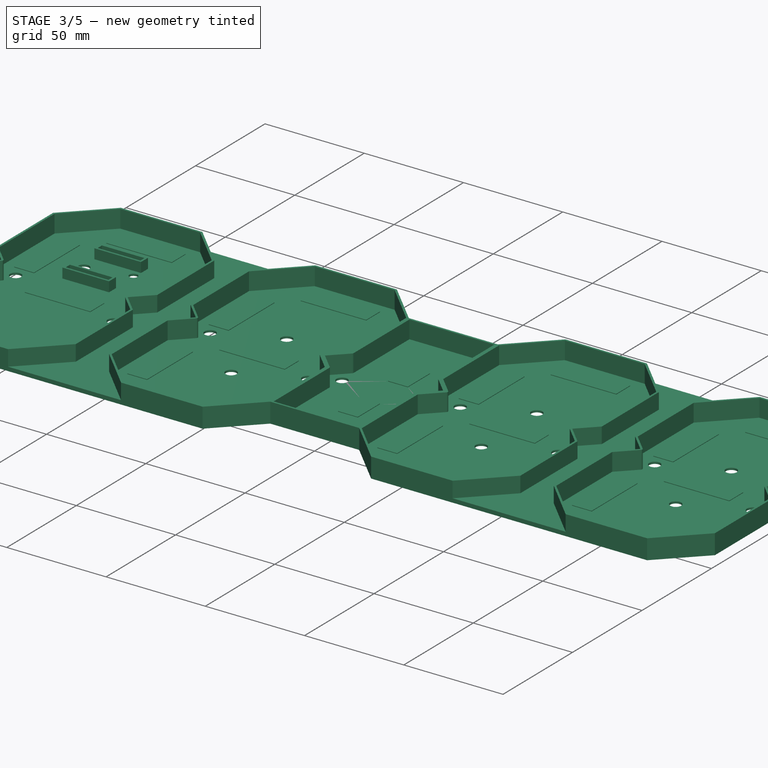
[diagram: stage 3 of 5 — iso view after this stage's code; geometry added in this stage tinted green]
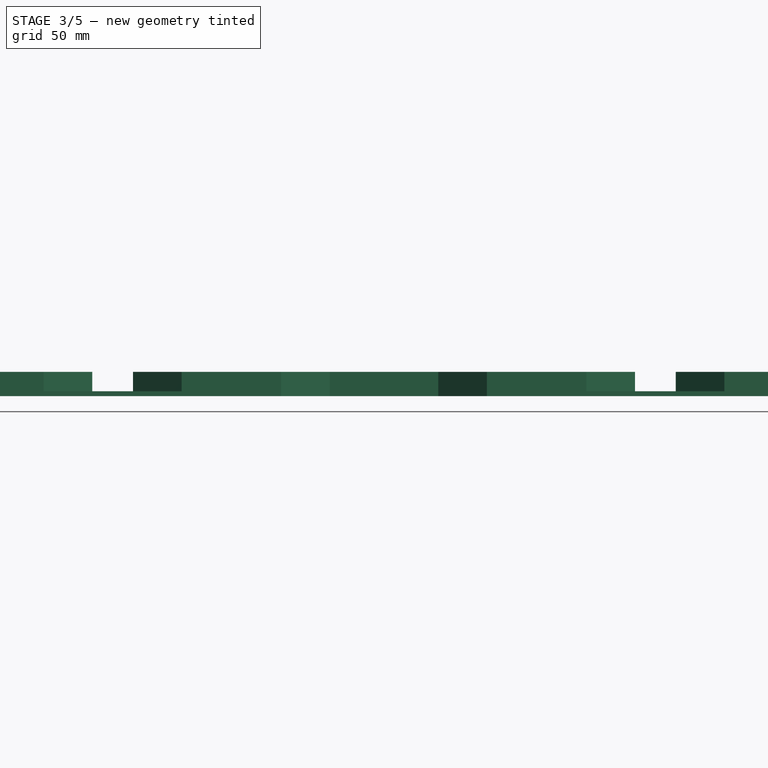
[diagram: stage 3 of 5 — front view after this stage's code; geometry added in this stage tinted green]
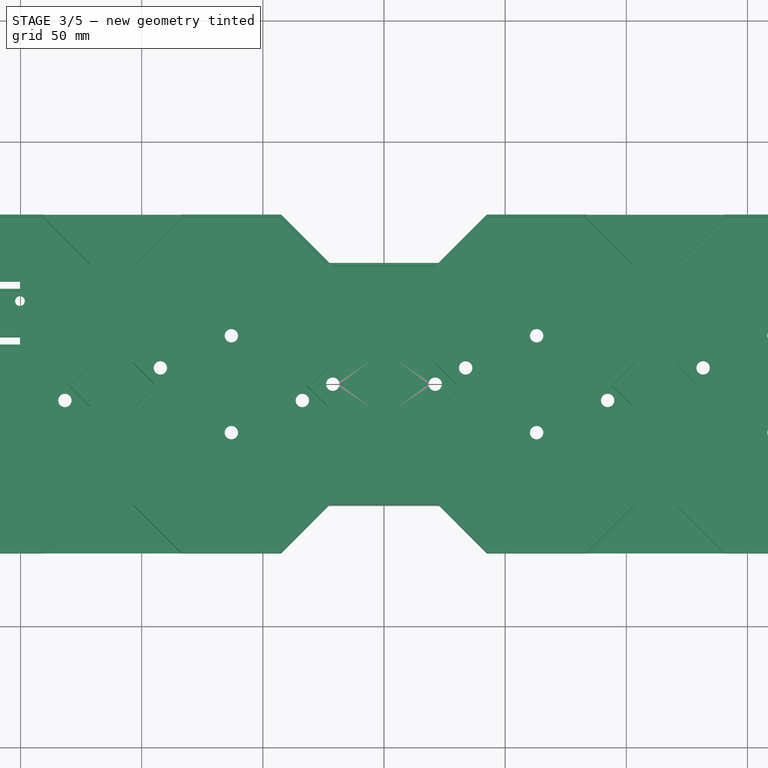
[diagram: stage 3 of 5 — top view after this stage's code; geometry added in this stage tinted green]
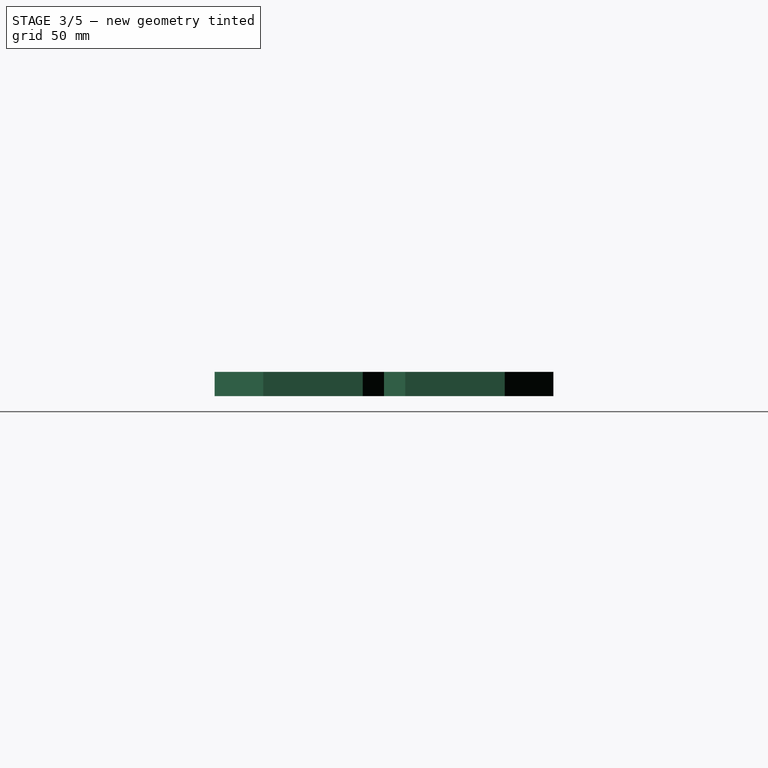
[diagram: stage 3 of 5 — right view after this stage's code; geometry added in this stage tinted green]
FEATURE [PartDesign::Body] Body028
  Group = -> [ShapeBinder004,ShapeBinder005,Sketch014,Pad010]
  Origin = -> Origin028
  Tip = -> Pad010
FEATURE [Part::MultiFuse] Fusion001  label="panel-left"
  Placement = pos=(-112,0,0) rot=(0,0,1;0rad)
  Shapes = -> [Body026,Body027,Body028]
FEATURE [PartDesign::FeatureBase] Clone008
  BaseFeature = -> Body025
FEATURE [PartDesign::Body] Body029
  BaseFeature = -> Body025
  Group = -> [Clone008]
  Origin = -> Origin029
  Placement = pos=(-49,0,0) rot=(0,0,1;0rad)
  Tip = -> Clone008
FEATURE [PartDesign::FeatureBase] Clone009
  BaseFeature = -> Body025
FEATURE [PartDesign::Body] Body031
  BaseFeature = -> Body028
  Group = -> [Clone010]
  Origin = -> Origin031
  Tip = -> Clone010
FEATURE [Part::MultiFuse] Fusion002  label="panel-right"
  Placement = pos=(112,0,0) rot=(0,0,1;0rad)
  Shapes = -> [Body029,Body030,Body031]
FEATURE [PartDesign::ShapeBinder] ShapeBinder006
  Placement = pos=(-112,0,0) rot=(0,0,1;0rad)
  Support = -> [Fusion001]
  TraceSupport = false
FEATURE [PartDesign::ShapeBinder] ShapeBinder007
  Placement = pos=(112,0,0) rot=(0,0,1;0rad)
  Support = -> [Fusion002]
  TraceSupport = false
FEATURE [Sketcher::SketchObject] Sketch015
  ExternalGeometry = -> [ShapeBinder006,ShapeBinder007]
  FullyConstrained = true
  MapMode = 5
  Support = -> [XY_Plane032]
  sketch-geometry (10):
    g0: LineSegment StartX=-22.4 StartY=49.8385 StartZ=0 EndX=22.4 EndY=49.8385 EndZ=0
    g1: LineSegment StartX=22.4 StartY=49.8385 StartZ=0 EndX=22.4 EndY=8.76152 EndZ=0
    g2: LineSegment StartX=22.4 StartY=8.76152 StartZ=0 EndX=31.1615 EndY=0 EndZ=0
    g3: LineSegment StartX=31.1615 StartY=0 StartZ=0 EndX=22.4 EndY=-8.76152 EndZ=0
    g4: LineSegment StartX=22.4 StartY=-8.76152 StartZ=0 EndX=22.4 EndY=-49.8385 EndZ=0
    g5: LineSegment StartX=22.4 StartY=-49.8385 StartZ=0 EndX=-22.4 EndY=-49.8385 EndZ=0
    g6: LineSegment StartX=-22.4 StartY=-49.8385 StartZ=0 EndX=-22.4 EndY=-8.76152 EndZ=0
    g7: LineSegment StartX=-22.4 StartY=-8.76152 StartZ=0 EndX=-31.1615 EndY=0 EndZ=0
    g8: LineSegment StartX=-31.1615 StartY=0 StartZ=0 EndX=-22.4 EndY=8.76152 EndZ=0
    g9: LineSegment StartX=-22.4 StartY=8.76152 StartZ=0 EndX=-22.4 EndY=49.8385 EndZ=0
  constraints (20):
    c: Coincident(g-3,g0)
    c: Coincident(g0,g-7)
    c: Coincident(g0,g1)
    c: Coincident(g1,g-8)
    c: Coincident(g1,g2)
    c: Coincident(g2,g-9)
    c: Coincident(g2,g3)
    c: Coincident(g3,g-10)
    c: Coincident(g3,g4)
    c: Coincident(g4,g-10)
    c: Coincident(g4,g5)
    c: Coincident(g5,g-4)
    c: Coincident(g5,g6)
    c: Coincident(g6,g-5)
    c: Coincident(g6,g7)
    c: Coincident(g7,g-6)
    c: Coincident(g7,g8)
    c: Coincident(g8,g9)
    c: Coincident(g9,g0)
    c: Coincident(g8,g-6)
FEATURE [PartDesign::Pad] Pad011
  Direction = (1,1,1)
  Length = 10
  Length2 = 100
  Profile = -> Sketch015
  Type = 0
FEATURE [PartDesign::Thickness] Thickness003
  Base = -> Pad011 [Face12]
  BaseFeature = -> Pad011
  Intersection = false
  Join = 0
  Mode = 0
  Reversed = true
  SupportTransform = false
  Value = 1
FEATURE [Sketcher::SketchObject] Sketch016
  ExternalGeometry = -> [Thickness003]
  FullyConstrained = true
  MapMode = 5
  Placement = pos=(0,0,1) rot=(0,0,1;0rad)
  Support = -> [Thickness003]
  sketch-geometry (5):
    g0: LineSegment StartX=-5 StartY=26 StartZ=0 EndX=5 EndY=26 EndZ=0
    g1: LineSegment StartX=5 StartY=26 StartZ=0 EndX=5 EndY=10 EndZ=0
    g2: LineSegment StartX=5 StartY=10 StartZ=0 EndX=-5 EndY=10 EndZ=0
    g3: LineSegment StartX=-5 StartY=10 StartZ=0 EndX=-5 EndY=26 EndZ=0
    g4: LineSegment StartX=-7.66e-14 StartY=48.8385 StartZ=0 EndX=7.2043e-12 EndY=-48.8385 EndZ=0
  constraints (14):
    c: Coincident(g0,g1)
    c: Coincident(g1,g2)
    c: Coincident(g2,g3)
    c: Coincident(g3,g0)
    c: Horizontal(g2)
    c: Vertical(g1)
    c: Vertical(g3)
    c: Horizontal(g4,g-9)
    c: Horizontal(g4,g-4)
    c: Symmetric(g-3,g-4,g4)
    c: Symmetric(g0,g0,g4)
    c: DistanceY(g-1,g2) = 10
    c: DistanceX(g0,g0) = 10
    c: DistanceY(g3,g3) = 16
FEATURE [PartDesign::Pad] Pad012
  BaseFeature = -> Thickness003
  Direction = (1,1,1)
  Length = 0.3
  Length2 = 100
  Profile = -> Sketch016
  Type = 0
FEATURE [PartDesign::Mirrored] Mirrored
  BaseFeature = -> Pad012
  MirrorPlane = -> Sketch016 [H_Axis]
  Originals = -> [Pad012]
FEATURE [Sketcher::SketchObject] Sketch017
  ExternalGeometry = -> [ShapeBinder006]
  FullyConstrained = true
  MapMode = 5
  Placement = pos=(0,0,1) rot=(0,0,1;0rad)
  Support = -> [Mirrored]
  sketch-geometry (1):
    g0: Circle CenterX=-21.1615 CenterY=0 CenterZ=0 NormalX=0 NormalY=0 NormalZ=1 AngleXU=0 Radius=2.75
  constraints (3):
    c: PointOnObject(g0,g-1)
    c: Radius(g0) = 2.75
    c: DistanceX(g-4,g0) = 10
FEATURE [PartDesign::Pocket] Pocket004
  BaseFeature = -> Mirrored
  Length = 5
  Length2 = 100
  Profile = -> Sketch017
  Type = 0
FEATURE [PartDesign::Mirrored] Mirrored001
  BaseFeature = -> Pocket004
  MirrorPlane = -> Sketch017 [V_Axis]
  Originals = -> [Pocket004]
FEATURE [PartDesign::Body] Body032  label="panel-center"
  Group = -> [ShapeBinder006,ShapeBinder007,Sketch015,Pad011,Thickness003,Sketch016,Pad012,Mirrored,Sketch017,Pocket004,Mirrored001]
  Origin = -> Origin032
  Tip = -> Mirrored001
FEATURE [Part::MultiFuse] Fusion003  label="board"
  Shapes = -> [Body032,Fusion001,Fusion002]
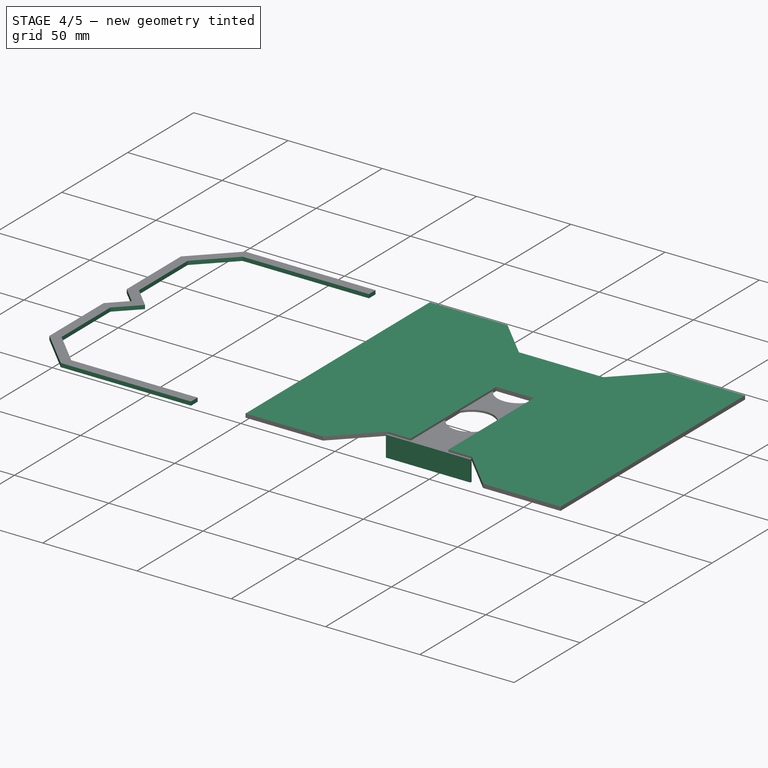
[diagram: stage 4 of 5 — iso view after this stage's code; geometry added in this stage tinted green]
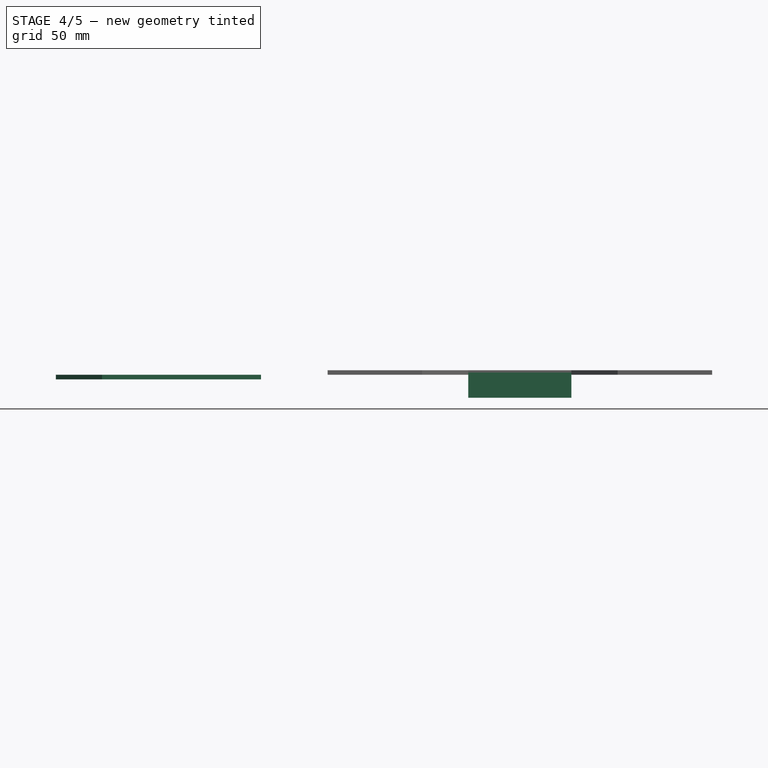
[diagram: stage 4 of 5 — front view after this stage's code; geometry added in this stage tinted green]
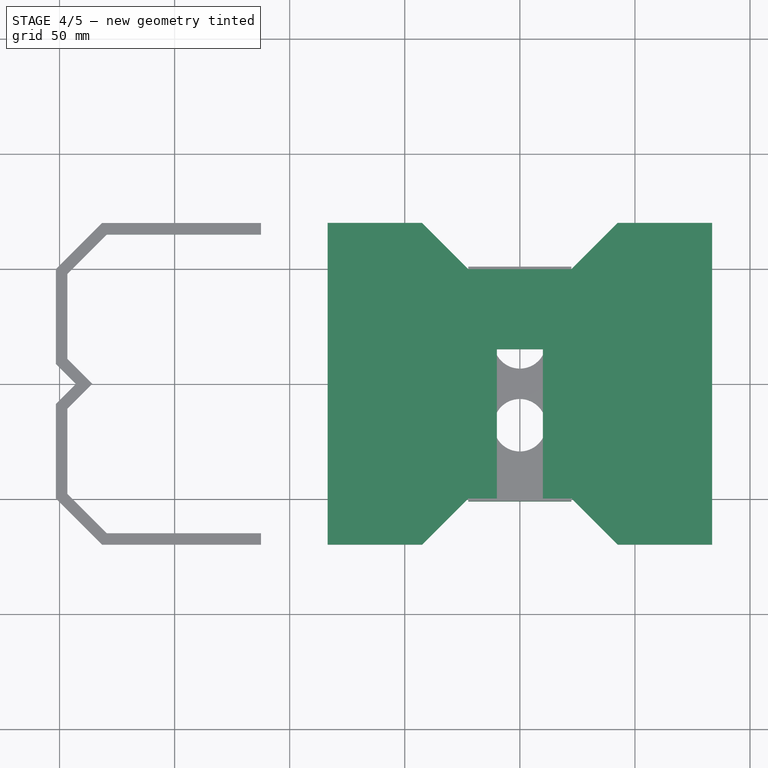
[diagram: stage 4 of 5 — top view after this stage's code; geometry added in this stage tinted green]
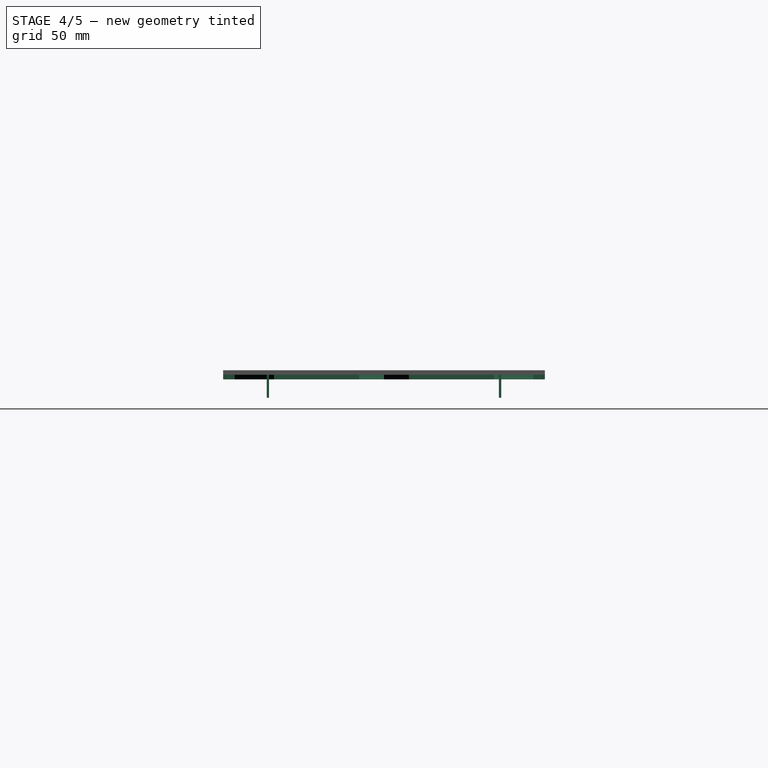
[diagram: stage 4 of 5 — right view after this stage's code; geometry added in this stage tinted green]
FEATURE [PartDesign::ShapeBinder] ShapeBinder008
  Support = -> [Fusion003]
  TraceSupport = false
FEATURE [Sketcher::SketchObject] Sketch018
  ExternalGeometry = -> [ShapeBinder008]
  FullyConstrained = false
  MapMode = 5
  Support = -> [XY_Plane033]
  sketch-geometry (5):
    g0: LineSegment StartX=-77.5358 StartY=15 StartZ=0 EndX=77.5358 EndY=15 EndZ=0
    g1: LineSegment StartX=77.5358 StartY=15 StartZ=0 EndX=77.5358 EndY=25 EndZ=0
    g2: LineSegment StartX=77.5358 StartY=25 StartZ=0 EndX=-77.5358 EndY=25 EndZ=0
    g3: LineSegment StartX=-77.5358 StartY=25 StartZ=0 EndX=-77.5358 EndY=15 EndZ=0
    g4: LineSegment StartX=63 StartY=20 StartZ=0 EndX=-63 EndY=20 EndZ=0
  constraints (11):
    c: Coincident(g0,g1)
    c: Coincident(g1,g2)
    c: Coincident(g2,g3)
    c: Coincident(g3,g0)
    c: Horizontal(g2)
    c: Vertical(g1)
    c: Symmetric(g0,g0,g-2)
    c: Coincident(g4,g-3)
    c: Coincident(g4,g-4)
    c: Symmetric(g2,g0,g4)
    c: DistanceY(g1,g1) = 10
FEATURE [PartDesign::Pad] Pad013
  Direction = (1,1,1)
  Length = 2
  Length2 = 100
  Profile = -> Sketch018
  Reversed = true
  Type = 0
FEATURE [PartDesign::ShapeBinder] ShapeBinder009
  Support = -> [Body032]
  TraceSupport = false
FEATURE [Sketcher::SketchObject] Sketch019
  ExternalGeometry = -> [ShapeBinder009]
  FullyConstrained = true
  MapMode = 5
  Support = -> [XY_Plane034]
  sketch-geometry (10):
    g0: LineSegment StartX=-22.4 StartY=50.9385 StartZ=0 EndX=22.4 EndY=50.9385 EndZ=0
    g1: LineSegment StartX=22.4 StartY=50.9385 StartZ=0 EndX=22.4 EndY=8.76152 EndZ=0
    g2: LineSegment StartX=22.4 StartY=8.76152 StartZ=0 EndX=31.1615 EndY=0 EndZ=0
    g3: LineSegment StartX=31.1615 StartY=0 StartZ=0 EndX=22.4 EndY=-8.76152 EndZ=0
    g4: LineSegment StartX=22.4 StartY=-8.76152 StartZ=0 EndX=22.4 EndY=-50.9385 EndZ=0
    g5: LineSegment StartX=22.4 StartY=-50.9385 StartZ=0 EndX=-22.4 EndY=-50.9385 EndZ=0
    g6: LineSegment StartX=-22.4 StartY=-50.9385 StartZ=0 EndX=-22.4 EndY=-8.76152 EndZ=0
    g7: LineSegment StartX=-22.4 StartY=-8.76152 StartZ=0 EndX=-31.1615 EndY=0 EndZ=0
    g8: LineSegment StartX=-31.1615 StartY=0 StartZ=0 EndX=-22.4 EndY=8.76152 EndZ=0
    g9: LineSegment StartX=-22.4 StartY=8.76152 StartZ=0 EndX=-22.4 EndY=50.9385 EndZ=0
  constraints (22):
    c: Coincident(g0,g1)
    c: Vertical(g1)
    c: Coincident(g1,g2)
    c: Coincident(g2,g3)
    c: Coincident(g3,g4)
    c: Coincident(g4,g5)
    c: Coincident(g5,g6)
    c: Vertical(g6)
    c: Coincident(g6,g7)
    c: Coincident(g7,g8)
    c: Coincident(g8,g9)
    c: Coincident(g9,g0)
    c: Symmetric(g0,g0,g-2)
    c: Symmetric(g7,g2,g-2)
    c: Symmetric(g4,g5,g-2)
    c: Symmetric(g0,g5,g-1)
    c: Symmetric(g6,g8,g-1)
    c: DistanceY(g-4,g0) = 1.1
    c: Symmetric(g3,g1,g-1)
    c: Horizontal(g3,g6)
    c: Coincident(g8,g-5)
    c: Coincident(g7,g-6)
FEATURE [PartDesign::Pad] Pad014
  Direction = (1,1,1)
  Length = 1
  Length2 = 100
  Profile = -> Sketch019
  Type = 0
FEATURE [Sketcher::SketchObject] Sketch020
  ExternalGeometry = -> [Pad014]
  FullyConstrained = true
  MapMode = 5
  Placement = pos=(0,0,0) rot=(1,0,0;3.14159rad)
  Support = -> [Pad014]
  sketch-geometry (8):
    g0: LineSegment StartX=-22.4 StartY=50.9385 StartZ=0 EndX=22.4 EndY=50.9385 EndZ=0
    g1: LineSegment StartX=22.4 StartY=50.9385 StartZ=0 EndX=22.4 EndY=49.9385 EndZ=0
    g2: LineSegment StartX=22.4 StartY=49.9385 StartZ=0 EndX=-22.4 EndY=49.9385 EndZ=0
    g3: LineSegment StartX=-22.4 StartY=49.9385 StartZ=0 EndX=-22.4 EndY=50.9385 EndZ=0
    g4: LineSegment StartX=-22.4 StartY=-50.9385 StartZ=0 EndX=22.4 EndY=-50.9385 EndZ=0
    g5: LineSegment StartX=22.4 StartY=-50.9385 StartZ=0 EndX=22.4 EndY=-49.9385 EndZ=0
    g6: LineSegment StartX=22.4 StartY=-49.9385 StartZ=0 EndX=-22.4 EndY=-49.9385 EndZ=0
    g7: LineSegment StartX=-22.4 StartY=-49.9385 StartZ=0 EndX=-22.4 EndY=-50.9385 EndZ=0
  constraints (20):
    c: Coincident(g0,g1)
    c: Coincident(g1,g2)
    c: Coincident(g2,g3)
    c: Coincident(g3,g0)
    c: Horizontal(g2)
    c: Vertical(g1)
    c: Vertical(g3)
    c: Coincident(g0,g-3)
    c: Coincident(g4,g5)
    c: Coincident(g5,g6)
    c: Coincident(g6,g7)
    c: Coincident(g7,g4)
    c: Horizontal(g6)
    c: Vertical(g5)
    c: Vertical(g7)
    c: Coincident(g4,g-4)
    c: Coincident(g4,g-4)
    c: Coincident(g0,g-3)
    c: Equal(g3,g7)
    c: DistanceY(g3,g3) = 1
FEATURE [PartDesign::Pad] Pad015
  BaseFeature = -> Pad014
  Direction = (1,1,1)
  Length = 10
  Length2 = 100
  Profile = -> Sketch020
  Type = 0
FEATURE [Sketcher::SketchObject] Sketch021
  ExternalGeometry = -> [ShapeBinder009]
  FullyConstrained = true
  MapMode = 5
  Placement = pos=(0,0,1) rot=(0,0,1;0rad)
  Support = -> [Pad015]
  sketch-geometry (2):
    g0: Circle CenterX=0 CenterY=18 CenterZ=0 NormalX=0 NormalY=0 NormalZ=1 AngleXU=0 Radius=11.4
    g1: LineSegment StartX=5 StartY=18 StartZ=0 EndX=-5 EndY=18 EndZ=0
  constraints (6):
    c: PointOnObject(g0,g-2)
    c: PointOnObject(g1,g-4)
    c: PointOnObject(g1,g-3)
    c: Symmetric(g-4,g-4,g1)
    c: PointOnObject(g0,g1)
    c: Radius(g0) = 11.4
FEATURE [PartDesign::Pocket] Pocket005
  BaseFeature = -> Pad015
  Length = 5
  Length2 = 100
  Profile = -> Sketch021
  Type = 0
FEATURE [PartDesign::Mirrored] Mirrored002
  BaseFeature = -> Pocket005
  MirrorPlane = -> Sketch021 [H_Axis]
  Originals = -> [Pocket005]
FEATURE [PartDesign::Body] Body034  label="panel-center-top"
  Group = -> [ShapeBinder009,Sketch019,Pad014,Sketch020,Pad015,Sketch021,Pocket005,Mirrored002]
  Origin = -> Origin034
  Placement = pos=(0,0,10) rot=(0,0,1;0rad)
  Tip = -> Mirrored002
FEATURE [Sketcher::SketchObject] Sketch026
  ExternalGeometry = -> [ShapeBinder008]
  FullyConstrained = true
  MapMode = 5
  Support = -> [Pad013]
  sketch-geometry (1):
    g0: Circle CenterX=-63 CenterY=20 CenterZ=0 NormalX=0 NormalY=0 NormalZ=1 AngleXU=0 Radius=2.3
  constraints (2):
    c: Coincident(g0,g-3)
    c: Radius(g0) = 2.3
FEATURE [PartDesign::Pad] Pad018
  BaseFeature = -> Pad013
  Direction = (1,1,1)
  Length = 1
  Length2 = 100
  Profile = -> Sketch026
  Type = 0
FEATURE [PartDesign::Mirrored] Mirrored003
  BaseFeature = -> Pad018
  MirrorPlane = -> Sketch026 [V_Axis]
  Originals = -> [Pad018]
FEATURE [PartDesign::Body] Body033  label="consolidator"
  Group = -> [ShapeBinder008,Sketch018,Pad013,Sketch026,Pad018,Mirrored003]
  Origin = -> Origin033
  Tip = -> Mirrored003
FEATURE [PartDesign::ShapeBinder] ShapeBinder012
  Support = -> [Fusion003]
  TraceSupport = false
FEATURE [Sketcher::SketchObject] Sketch027
  ExternalGeometry = -> [ShapeBinder012]
  FullyConstrained = false
  MapMode = 5
  Support = -> [XY_Plane037]
  sketch-geometry (14):
    g0: LineSegment StartX=-42.4615 StartY=69.9 StartZ=0 EndX=-22.4 EndY=49.8385 EndZ=0
    g1: LineSegment StartX=-22.4 StartY=49.8385 StartZ=0 EndX=22.4 EndY=49.8385 EndZ=0
    g2: LineSegment StartX=22.4 StartY=49.8385 StartZ=0 EndX=42.4615 EndY=69.9 EndZ=0
    g3: LineSegment StartX=42.4615 StartY=69.9 StartZ=0 EndX=112.462 EndY=69.9 EndZ=0
    g4: LineSegment StartX=112.462 StartY=69.9 StartZ=0 EndX=112.462 EndY=64.9 EndZ=0
    g5: LineSegment StartX=112.462 StartY=64.9 StartZ=0 EndX=44.5326 EndY=64.9 EndZ=0
    g6: LineSegment StartX=44.5326 StartY=64.9 StartZ=0 EndX=24.4711 EndY=44.8385 EndZ=0
    g7: LineSegment StartX=24.4711 StartY=44.8385 StartZ=0 EndX=-24.4711 EndY=44.8385 EndZ=0
    g8: LineSegment StartX=-112.462 StartY=69.9 StartZ=0 EndX=-42.4615 EndY=69.9 EndZ=0
    g9: LineSegment StartX=-112.462 StartY=69.9 StartZ=0 EndX=-112.462 EndY=64.9 EndZ=0
    g10: LineSegment StartX=-112.462 StartY=64.9 StartZ=0 EndX=-44.5326 EndY=64.9 EndZ=0
    g11: LineSegment StartX=-44.5326 StartY=64.9 StartZ=0 EndX=-24.4711 EndY=44.8385 EndZ=0
    g12: LineSegment StartX=31.0749 StartY=51.4423 StartZ=0 EndX=27.5393 EndY=54.9778 EndZ=0
    g13: LineSegment StartX=49.155 StartY=64.9 StartZ=0 EndX=49.155 EndY=69.9 EndZ=0
  constraints (35):
    c: Coincident(g-3,g0)
    c: Coincident(g0,g-3)
    c: Coincident(g0,g1)
    c: Coincident(g1,g-14)
    c: Coincident(g1,g2)
    c: Coincident(g2,g-14)
    c: Coincident(g2,g3)
    c: Horizontal(g3)
    c: Coincident(g3,g4)
    c: Vertical(g4)
    c: Coincident(g4,g5)
    c: Horizontal(g5)
    c: Coincident(g5,g6)
    c: Coincident(g6,g7)
    c: Coincident(g8,g0)
    c: Symmetric(g8,g3,g-2)
    c: Coincident(g8,g9)
    c: Vertical(g9)
    c: Coincident(g9,g10)
    c: Horizontal(g10)
    c: Coincident(g10,g11)
    c: Coincident(g11,g7)
    c: Symmetric(g10,g5,g-2)
    c: Symmetric(g6,g7,g-2)
    c: Equal(g11,g0)
    c: PointOnObject(g12,g6)
    c: PointOnObject(g12,g2)
    c: Perpendicular(g2,g12)
    c: Parallel(g6,g2)
    c: Distance(g12) = 5
    c: PointOnObject(g13,g5)
    c: PointOnObject(g13,g3)
    c: Vertical(g13)
    c: Equal(g13,g12)
    c: DistanceX(g3,g3) = 70
FEATURE [PartDesign::Pad] Pad019
  Direction = (1,1,1)
  Length = 2
  Length2 = 100
  Profile = -> Sketch027
  Type = 0
FEATURE [PartDesign::Body] Body039  label="panel-center-tube-cap"
  Group = -> [ShapeBinder014,Sketch032,Pad022,Sketch033,Pocket009,Sketch034,Pocket010]
  Origin = -> Origin039
  Placement = pos=(0,0,11) rot=(0,0,1;0rad)
  Tip = -> Pocket010
FEATURE [PartDesign::ShapeBinder] ShapeBinder015
  Support = -> [Fusion003]
  TraceSupport = false
FEATURE [PartDesign::ShapeBinder] ShapeBinder016
  Placement = pos=(0,0,-2) rot=(0,0,1;0rad)
  Support = -> [Body037]
  TraceSupport = false
FEATURE [Sketcher::SketchObject] Sketch035
  ExternalGeometry = -> [ShapeBinder016,ShapeBinder015]
  FullyConstrained = false
  MapMode = 5
  Support = -> [XY_Plane040]
  sketch-geometry (21):
    g0: LineSegment StartX=-112.462 StartY=64.9 StartZ=0 EndX=-112.462 EndY=69.9 EndZ=0
    g1: LineSegment StartX=-112.462 StartY=69.9 StartZ=0 EndX=-181.538 EndY=69.9 EndZ=0
    g2: LineSegment StartX=-181.538 StartY=69.9 StartZ=0 EndX=-201.6 EndY=49.8385 EndZ=0
    g3: LineSegment StartX=-201.6 StartY=49.8385 StartZ=0 EndX=-201.6 EndY=8.76152 EndZ=0
    g4: LineSegment StartX=-201.6 StartY=8.76152 StartZ=0 EndX=-192.838 EndY=0 EndZ=0
    g5: LineSegment StartX=-192.838 StartY=0 StartZ=0 EndX=-201.6 EndY=-8.76152 EndZ=0
    g6: LineSegment StartX=-201.6 StartY=-8.76152 StartZ=0 EndX=-201.6 EndY=-49.8385 EndZ=0
    g7: LineSegment StartX=-201.6 StartY=-49.8385 StartZ=0 EndX=-181.538 EndY=-69.9 EndZ=0
    g8: LineSegment StartX=-179.467 StartY=-64.9 StartZ=0 EndX=-196.6 EndY=-47.7674 EndZ=0
    g9: LineSegment StartX=-196.6 StartY=-47.7674 StartZ=0 EndX=-196.6 EndY=-10.8326 EndZ=0
    g10: LineSegment StartX=-196.6 StartY=-10.8326 StartZ=0 EndX=-185.767 EndY=0 EndZ=0
    g11: LineSegment StartX=-185.767 StartY=0 StartZ=0 EndX=-196.6 EndY=10.8326 EndZ=0
    g12: LineSegment StartX=-196.6 StartY=10.8326 StartZ=0 EndX=-196.6 EndY=47.7674 EndZ=0
    g13: LineSegment StartX=-196.6 StartY=47.7674 StartZ=0 EndX=-179.467 EndY=64.9 EndZ=0
    g14: LineSegment StartX=-179.467 StartY=64.9 StartZ=0 EndX=-112.462 EndY=64.9 EndZ=0
    g15: LineSegment StartX=-181.538 StartY=-69.9 StartZ=0 EndX=-112.462 EndY=-69.9 EndZ=0
    g16: LineSegment StartX=-112.462 StartY=-69.9 StartZ=0 EndX=-112.462 EndY=-64.9 EndZ=0
    g17: LineSegment StartX=-112.462 StartY=-64.9 StartZ=0 EndX=-179.467 EndY=-64.9 EndZ=0
    g18: LineSegment StartX=-185.995 StartY=58.3719 StartZ=0 EndX=-189.531 EndY=61.9075 EndZ=0
    g19: LineSegment StartX=-196.48 StartY=3.64112 StartZ=0 EndX=-192.944 EndY=7.17665 EndZ=0
    g20: LineSegment StartX=-196.6 StartY=32.2356 StartZ=0 EndX=-201.6 EndY=32.2356 EndZ=0
  constraints (51):
    c: Coincident(g-3,g0)
    c: Coincident(g0,g-3)
    c: Coincident(g0,g1)
    c: Coincident(g1,g-6)
    c: Coincident(g1,g2)
    c: Coincident(g2,g-7)
    c: Coincident(g2,g3)
    c: Coincident(g3,g-8)
    c: Coincident(g3,g4)
    c: Coincident(g4,g-9)
    c: Coincident(g4,g5)
    c: Coincident(g5,g-10)
    c: Coincident(g5,g6)
    c: Coincident(g6,g-11)
    c: Coincident(g6,g7)
    c: Coincident(g8,g9)
    c: Vertical(g9)
    c: Coincident(g9,g10)
    c: PointOnObject(g10,g-1)
    c: Coincident(g10,g11)
    c: Coincident(g11,g12)
    c: Coincident(g12,g13)
    c: Coincident(g13,g14)
    c: Coincident(g14,g0)
    c: Horizontal(g14)
    c: Coincident(g7,g15)
    c: Horizontal(g15)
    c: Coincident(g15,g16)
    c: Vertical(g16)
    c: Coincident(g16,g17)
    c: Coincident(g17,g8)
    c: Horizontal(g17)
    c: Vertical(g16,g0)
    c: PointOnObject(g18,g13)
    c: PointOnObject(g18,g2)
    c: Perpendicular(g18,g2)
    c: Equal(g18,g0)
    c: PointOnObject(g19,g4)
    c: PointOnObject(g19,g11)
    c: Perpendicular(g11,g19)
    c: Equal(g19,g18)
    c: PointOnObject(g20,g12)
    c: PointOnObject(g20,g3)
    c: Horizontal(g20)
    c: Equal(g20,g19)
    c: Angle(g11) = 2.35619
    c: Angle(g13) = 0.785398
    c: Symmetric(g9,g11,g-1)
    c: Coincident(g7,g-11)
    c: Symmetric(g12,g8,g-1)
    c: Symmetric(g8,g13,g-1)
FEATURE [PartDesign::Pad] Pad023
  Direction = (1,1,1)
  Length = 2
  Length2 = 100
  Profile = -> Sketch035
  Reversed = true
  Type = 0
FEATURE [PartDesign::Body] Body040  label="border-side"
  Group = -> [ShapeBinder015,ShapeBinder016,Sketch035,Pad023]
  Origin = -> Origin040
  Tip = -> Pad023
FEATURE [PartDesign::ShapeBinder] ShapeBinder017
  Support = -> [Fusion003]
  TraceSupport = false
FEATURE [PartDesign::ShapeBinder] ShapeBinder018
  Support = -> [Body033]
  TraceSupport = false
FEATURE [Sketcher::SketchObject] Sketch036
  ExternalGeometry = -> [ShapeBinder017,ShapeBinder018]
  FullyConstrained = true
  MapMode = 5
  Support = -> [XY_Plane041]
  sketch-geometry (18):
    g0: LineSegment StartX=-83.5385 StartY=69.9 StartZ=0 EndX=-83.5385 EndY=-69.9 EndZ=0
    g1: LineSegment StartX=-83.5385 StartY=-69.9 StartZ=0 EndX=-42.4615 EndY=-69.9 EndZ=0
    g2: LineSegment StartX=-42.4615 StartY=-69.9 StartZ=0 EndX=-22.4 EndY=-49.8385 EndZ=0
    g3: LineSegment StartX=22.4 StartY=-49.8385 StartZ=0 EndX=42.4615 EndY=-69.9 EndZ=0
    g4: LineSegment StartX=42.4615 StartY=-69.9 StartZ=0 EndX=83.5385 EndY=-69.9 EndZ=0
    g5: LineSegment StartX=83.5385 StartY=-69.9 StartZ=0 EndX=83.5385 EndY=69.9 EndZ=0
    g6: LineSegment StartX=83.5385 StartY=69.9 StartZ=0 EndX=42.4615 EndY=69.9 EndZ=0
    g7: LineSegment StartX=42.4615 StartY=69.9 StartZ=0 EndX=22.4 EndY=49.8385 EndZ=0
    g8: LineSegment StartX=22.4 StartY=49.8385 StartZ=0 EndX=-22.4 EndY=49.8385 EndZ=0
    g9: LineSegment StartX=-22.4 StartY=49.8385 StartZ=0 EndX=-42.4615 EndY=69.9 EndZ=0
    g10: LineSegment StartX=-42.4615 StartY=69.9 StartZ=0 EndX=-83.5385 EndY=69.9 EndZ=0
    g11: GeomPoint X=-10 Y=-49.8385 Z=0
    g12: GeomPoint X=10 Y=-49.8385 Z=0
    g13: LineSegment StartX=22.4 StartY=-49.8385 StartZ=0 EndX=10 EndY=-49.8385 EndZ=0
    g14: LineSegment StartX=-10 StartY=-49.8385 StartZ=0 EndX=-22.4 EndY=-49.8385 EndZ=0
    g15: LineSegment StartX=-10 StartY=15 StartZ=0 EndX=10 EndY=15 EndZ=0
    g16: LineSegment StartX=10 StartY=-49.8385 StartZ=0 EndX=10 EndY=15 EndZ=0
    g17: LineSegment StartX=-10 StartY=15 StartZ=0 EndX=-10 EndY=-49.8385 EndZ=0
  constraints (36):
    c: Coincident(g-4,g0)
    c: Coincident(g0,g-24)
    c: Coincident(g0,g1)
    c: Coincident(g1,g-23)
    c: Coincident(g1,g2)
    c: Coincident(g2,g-22)
    c: Coincident(g3,g-20)
    c: Coincident(g3,g4)
    c: Coincident(g4,g-19)
    c: Coincident(g4,g5)
    c: Coincident(g5,g-9)
    c: Coincident(g5,g6)
    c: Coincident(g6,g-8)
    c: Coincident(g6,g7)
    c: Coincident(g7,g-7)
    c: Coincident(g7,g8)
    c: Coincident(g8,g-6)
    c: Coincident(g8,g9)
    c: Coincident(g9,g-5)
    c: Coincident(g9,g10)
    c: Coincident(g10,g0)
    c: Symmetric(g11,g12,g-2)
    c: Coincident(g13,g3)
    c: Coincident(g13,g12)
    c: Coincident(g14,g11)
    c: Coincident(g14,g2)
    c: Symmetric(g15,g15,g-2)
    c: Vertical(g15,g14)
    c: Coincident(g3,g-21)
    c: Coincident(g16,g13)
    c: Coincident(g16,g15)
    c: Coincident(g17,g15)
    c: Coincident(g17,g14)
    c: PointOnObject(g14,g-21)
    c: DistanceX(g15,g15) = 20
    c: PointOnObject(g15,g-33)
FEATURE [PartDesign::Pad] Pad024
  Direction = (1,1,1)
  Length = 2
  Length2 = 100
  Profile = -> Sketch036
  Type = 0
FEATURE [PartDesign::Body] Body041
  Group = -> [ShapeBinder017,Sketch036,ShapeBinder018,Pad024]
  Origin = -> Origin041
  Placement = pos=(0,0,-7) rot=(0,0,1;0rad)
  Tip = -> Pad024
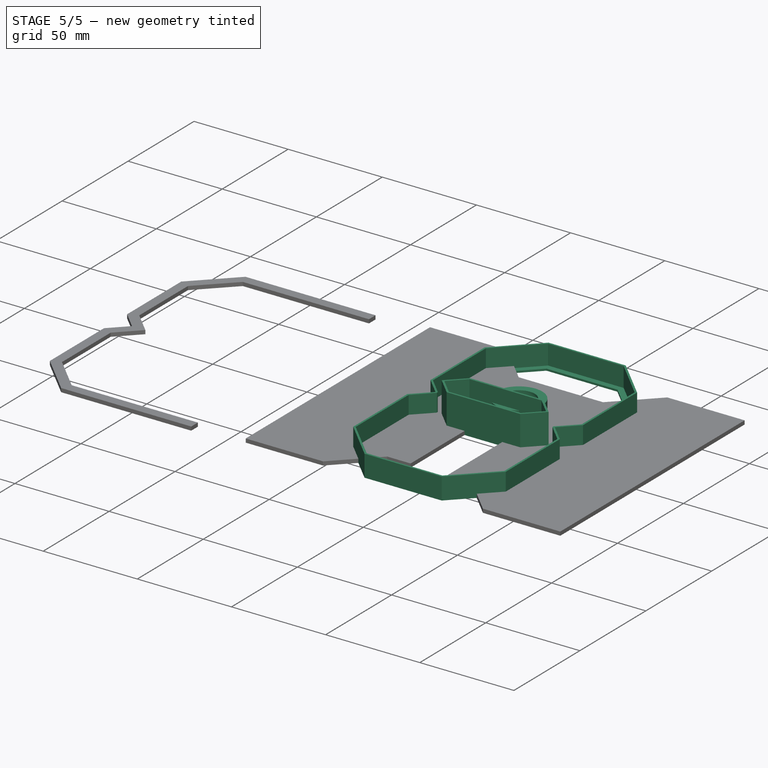
[diagram: stage 5 of 5 — iso view after this stage's code; geometry added in this stage tinted green]
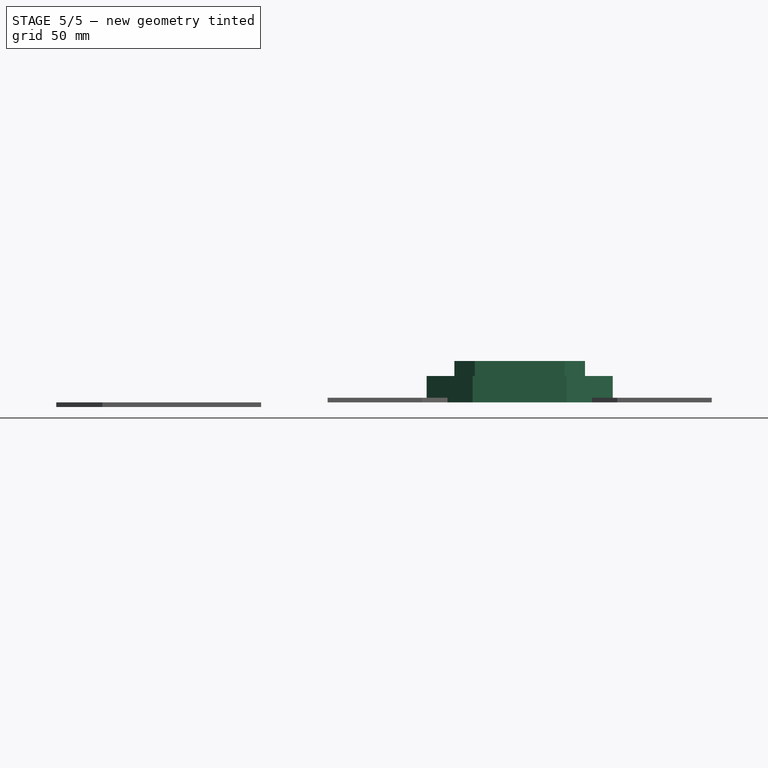
[diagram: stage 5 of 5 — front view after this stage's code; geometry added in this stage tinted green]
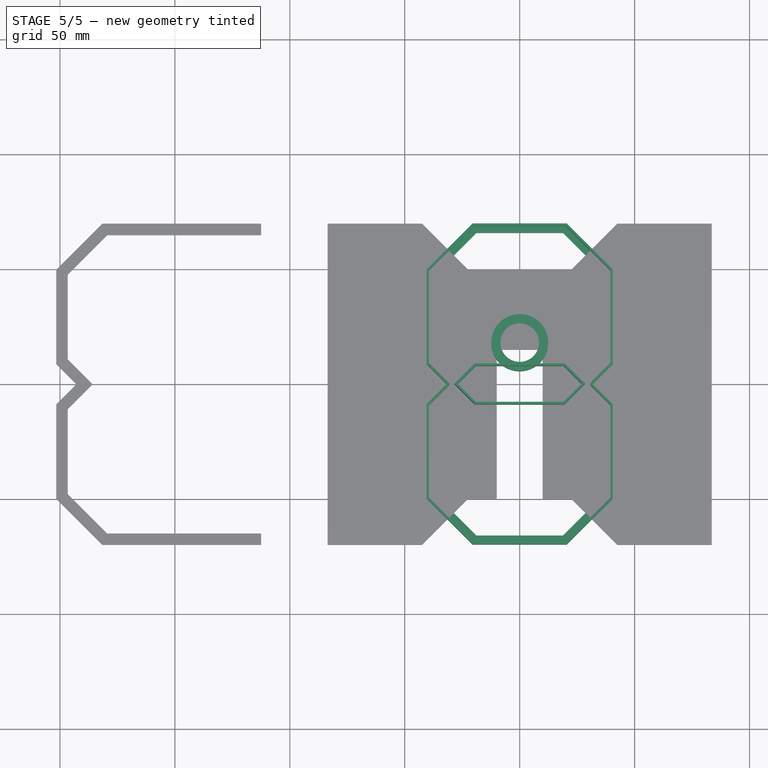
[diagram: stage 5 of 5 — top view after this stage's code; geometry added in this stage tinted green]
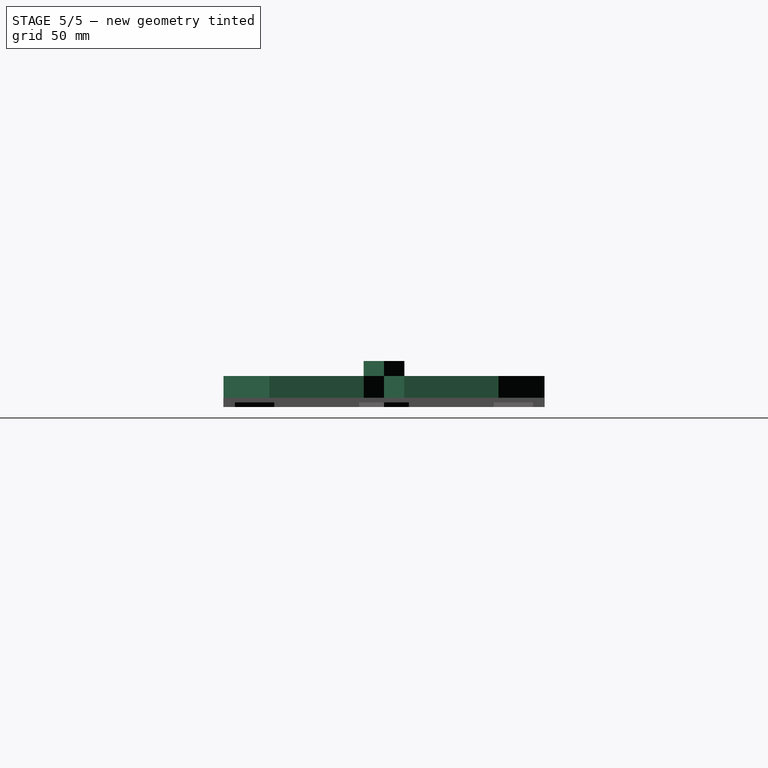
[diagram: stage 5 of 5 — right view after this stage's code; geometry added in this stage tinted green]
FEATURE [PartDesign::Body] Body008  label="back-esp"
  Group = -> [ShapeBinder,Sketch001,Pad001,Thickness,Sketch002,Pad002,Sketch003,Pocket,Sketch004,Pad003]
  Origin = -> Origin008
  Tip = -> Pad003
FEATURE [PartDesign::ShapeBinder] ShapeBinder001
  Support = -> [Body]
  TraceSupport = false
FEATURE [Sketcher::SketchObject] Sketch005
  ExternalGeometry = -> [ShapeBinder001]
  FullyConstrained = false
  MapMode = 5
  Support = -> [XY_Plane009]
  sketch-geometry (8):
    g0: LineSegment StartX=-19.5319 StartY=8.87 StartZ=0 EndX=19.5319 EndY=8.87 EndZ=0
    g1: LineSegment StartX=19.5319 StartY=8.87 StartZ=0 EndX=28.4019 EndY=0 EndZ=0
    g2: LineSegment StartX=28.4019 StartY=0 StartZ=0 EndX=19.5319 EndY=-8.87 EndZ=0
    g3: LineSegment StartX=19.5319 StartY=-8.87 StartZ=0 EndX=-19.5319 EndY=-8.87 EndZ=0
    g4: LineSegment StartX=-19.5319 StartY=-8.87 StartZ=0 EndX=-28.4019 EndY=0 EndZ=0
    g5: LineSegment StartX=-28.4019 StartY=0 StartZ=0 EndX=-19.5319 EndY=8.87 EndZ=0
    g6: LineSegment StartX=6.84283 StartY=8.87 StartZ=0 EndX=6.84283 EndY=9 EndZ=0
    g7: LineSegment StartX=22.9862 StartY=5.41571 StartZ=0 EndX=23.0782 EndY=5.50763 EndZ=0
  constraints (21):
    c: Coincident(g0,g1)
    c: PointOnObject(g1,g-1)
    c: Coincident(g1,g2)
    c: Coincident(g2,g3)
    c: Horizontal(g3)
    c: Coincident(g3,g4)
    c: Coincident(g4,g5)
    c: Equal(g0,g3)
    c: Symmetric(g4,g1,g-2)
    c: Symmetric(g2,g0,g-1)
    c: Angle(g5) = 0.785398
    c: PointOnObject(g6,g0)
    c: PointOnObject(g6,g-3)
    c: Vertical(g6)
    c: DistanceY(g6,g6) = 0.13
    c: PointOnObject(g7,g1)
    c: PointOnObject(g7,g-7)
    c: Perpendicular(g1,g7)
    c: Equal(g7,g6)
    c: Coincident(g0,g5)
    c: Symmetric(g0,g0,g-2)
FEATURE [PartDesign::Pad] Pad004
  Direction = (1,1,1)
  Length = 18
  Length2 = 100
  Profile = -> Sketch005
  Type = 0
FEATURE [Sketcher::SketchObject] Sketch006
  ExternalGeometry = -> [Pad004]
  FullyConstrained = false
  MapMode = 5
  Placement = pos=(0,0,18) rot=(0,0,1;0rad)
  Support = -> [Pad004]
  sketch-geometry (8):
    g0: LineSegment StartX=-19.1177 StartY=7.87 StartZ=0 EndX=19.1177 EndY=7.87 EndZ=0
    g1: LineSegment StartX=19.1177 StartY=7.87 StartZ=0 EndX=26.9877 EndY=-9e-16 EndZ=0
    g2: LineSegment StartX=26.9877 StartY=0 StartZ=0 EndX=19.1177 EndY=-7.87 EndZ=0
    g3: LineSegment StartX=19.1177 StartY=-7.87 StartZ=0 EndX=-19.1177 EndY=-7.87 EndZ=0
    g4: LineSegment StartX=-19.1177 StartY=-7.87 StartZ=0 EndX=-26.9877 EndY=-9e-16 EndZ=0
    g5: LineSegment StartX=-26.9877 StartY=0 StartZ=0 EndX=-19.1177 EndY=7.87 EndZ=0
    g6: LineSegment StartX=5.64393 StartY=7.87 StartZ=0 EndX=5.64393 EndY=8.87 EndZ=0
    g7: LineSegment StartX=23.5274 StartY=3.46031 StartZ=0 EndX=24.2345 EndY=4.16742 EndZ=0
  constraints (22):
    c: Horizontal(g0)
    c: Coincident(g0,g1)
    c: PointOnObject(g1,g-1)
    c: Coincident(g1,g2)
    c: Coincident(g2,g3)
    c: Horizontal(g3)
    c: Coincident(g3,g4)
    c: Coincident(g4,g5)
    c: Coincident(g5,g0)
    c: Symmetric(g1,g4,g-2)
    c: Symmetric(g2,g0,g-1)
    c: Equal(g2,g5)
    c: Angle(g5) = 0.785398
    c: Vertical(g0,g3)
    c: PointOnObject(g6,g0)
    c: PointOnObject(g6,g-3)
    c: Vertical(g6)
    c: PointOnObject(g7,g1)
    c: PointOnObject(g7,g-8)
    c: Perpendicular(g1,g7)
    c: Equal(g6,g7)
    c: DistanceY(g6,g6) = 1
FEATURE [PartDesign::Pocket] Pocket001
  BaseFeature = -> Pad004
  Length = 5
  Length2 = 100
  Profile = -> Sketch006
  Type = 1
FEATURE [PartDesign::Body] Body009  label="single-segment"
  Group = -> [ShapeBinder001,Sketch005,Pad004,Sketch006,Pocket001]
  Origin = -> Origin009
  Tip = -> Pocket001
FEATURE [PartDesign::ShapeBinder] ShapeBinder002
  Support = -> [Fusion]
  TraceSupport = false
FEATURE [Sketcher::SketchObject] Sketch008
  ExternalGeometry = -> [ShapeBinder002]
  FullyConstrained = false
  MapMode = 5
  Support = -> [XY_Plane017]
  sketch-geometry (19):
    g0: LineSegment StartX=-20.4971 StartY=69.8 StartZ=0 EndX=20.4971 EndY=69.8 EndZ=0
    g1: LineSegment StartX=20.4971 StartY=69.8 StartZ=0 EndX=40.5 EndY=49.7971 EndZ=0
    g2: LineSegment StartX=40.5 StartY=49.7971 StartZ=0 EndX=40.5 EndY=8.80294 EndZ=0
    g3: LineSegment StartX=40.5 StartY=8.80294 StartZ=0 EndX=31.6971 EndY=0 EndZ=0
    g4: LineSegment StartX=31.6971 StartY=0 StartZ=0 EndX=40.5 EndY=-8.80294 EndZ=0
    g5: LineSegment StartX=40.5 StartY=-8.80294 StartZ=0 EndX=40.5 EndY=-49.7971 EndZ=0
    g6: LineSegment StartX=40.5 StartY=-49.7971 StartZ=0 EndX=20.4971 EndY=-69.8 EndZ=0
    g7: LineSegment StartX=20.4971 StartY=-69.8 StartZ=0 EndX=-20.4971 EndY=-69.8 EndZ=0
    g8: LineSegment StartX=-20.4971 StartY=-69.8 StartZ=0 EndX=-40.5 EndY=-49.7971 EndZ=0
    g9: LineSegment StartX=-40.5 StartY=-49.7971 StartZ=0 EndX=-40.5 EndY=-8.80294 EndZ=0
    g10: LineSegment StartX=-40.5 StartY=-8.80294 StartZ=0 EndX=-31.6971 EndY=0 EndZ=0
    g11: LineSegment StartX=-31.6971 StartY=0 StartZ=0 EndX=-40.5 EndY=8.80294 EndZ=0
    g12: LineSegment StartX=-40.5 StartY=8.80294 StartZ=0 EndX=-40.5 EndY=49.7971 EndZ=0
    g13: LineSegment StartX=-40.5 StartY=49.7971 StartZ=0 EndX=-20.4971 EndY=69.8 EndZ=0
    g14: LineSegment StartX=-7.19333e+06 StartY=68.6 StartZ=0 EndX=-7.19333e+06 EndY=69.8 EndZ=0
    g15: LineSegment StartX=-7.19333e+06 StartY=-68.6 StartZ=0 EndX=-7.19333e+06 EndY=-69.8 EndZ=0
    g16: LineSegment StartX=-40.5 StartY=-3.5966e+06 StartZ=0 EndX=-39.3 EndY=-3.5966e+06 EndZ=0
    g17: LineSegment StartX=34.9315 StartY=3.23442 StartZ=0 EndX=34.083 EndY=4.08295 EndZ=0
    g18: LineSegment StartX=40.5 StartY=11.0092 StartZ=0 EndX=39.3 EndY=11.0092 EndZ=0
  constraints (55):
    c: Horizontal(g0)
    c: Coincident(g0,g1)
    c: Coincident(g1,g2)
    c: Vertical(g2)
    c: Coincident(g2,g3)
    c: PointOnObject(g3,g-1)
    c: Coincident(g3,g4)
    c: Coincident(g4,g5)
    c: Vertical(g5)
    c: Coincident(g5,g6)
    c: Coincident(g6,g7)
    c: Horizontal(g7)
    c: Coincident(g7,g8)
    c: Coincident(g8,g9)
    c: Vertical(g9)
    c: Coincident(g9,g10)
    c: Coincident(g10,g11)
    c: Coincident(g11,g12)
    c: Vertical(g12)
    c: Coincident(g12,g13)
    c: Coincident(g13,g0)
    c: Equal(g13,g1)
    c: Equal(g1,g6)
    c: Equal(g6,g8)
    c: Equal(g9,g5)
    c: Equal(g5,g7)
    c: Equal(g7,g0)
    c: Equal(g0,g2)
    c: Equal(g2,g12)
    c: Equal(g11,g3)
    c: Vertical(g11,g9)
    c: Vertical(g4,g2)
    c: Symmetric(g3,g10,g-2)
    c: Symmetric(g4,g9,g-2)
    c: Angle(g11) = 2.35619
    c: Equal(g11,g10)
    c: PointOnObject(g14,g-3)
    c: Vertical(g14)
    c: PointOnObject(g15,g-12)
    c: PointOnObject(g15,g7)
    c: Vertical(g15)
    c: Equal(g15,g14)
    c: PointOnObject(g16,g12)
    c: PointOnObject(g16,g-5)
    c: Horizontal(g16)
    c: Equal(g14,g16)
    c: Angle(g13) = 0.785398
    c: PointOnObject(g17,g3)
    c: PointOnObject(g18,g2)
    c: Horizontal(g18)
    c: Perpendicular(g-9,g17)
    c: Equal(g18,g17)
    c: PointOnObject(g18,g-4)
    c: PointOnObject(g17,g-9)
    c: DistanceX(g18,g18) = 1.2
FEATURE [PartDesign::Pad] Pad006
  Direction = (1,1,1)
  Length = 11.5
  Length2 = 100
  Profile = -> Sketch008
  Type = 0
FEATURE [PartDesign::Thickness] Thickness001
  Base = -> Pad006 [Face16]
  BaseFeature = -> Pad006
  Intersection = false
  Join = 0
  Mode = 0
  Reversed = true
  SupportTransform = false
  Value = 1
FEATURE [Sketcher::SketchObject] Sketch009
  ExternalGeometry = -> [Thickness001]
  FullyConstrained = false
  MapMode = 5
  Placement = pos=(0,0,1) rot=(0,0,1;0rad)
  Support = -> [Thickness001]
  sketch-geometry (17):
    g0: LineSegment StartX=-18.8402 StartY=65.8 StartZ=0 EndX=18.8402 EndY=65.8 EndZ=0
    g1: LineSegment StartX=18.8402 StartY=65.8 StartZ=0 EndX=36.5 EndY=48.1402 EndZ=0
    g2: LineSegment StartX=36.5 StartY=48.1402 StartZ=0 EndX=36.5 EndY=10.4598 EndZ=0
    g3: LineSegment StartX=36.5 StartY=10.4598 StartZ=0 EndX=26.0402 EndY=0 EndZ=0
    g4: LineSegment StartX=26.0402 StartY=0 StartZ=0 EndX=36.5 EndY=-10.4598 EndZ=0
    g5: LineSegment StartX=36.5 StartY=-10.4598 StartZ=0 EndX=36.5 EndY=-48.1402 EndZ=0
    g6: LineSegment StartX=36.5 StartY=-48.1402 StartZ=0 EndX=18.8402 EndY=-65.8 EndZ=0
    g7: LineSegment StartX=18.8402 StartY=-65.8 StartZ=0 EndX=-18.8402 EndY=-65.8 EndZ=0
    g8: LineSegment StartX=-18.8402 StartY=-65.8 StartZ=0 EndX=-36.5 EndY=-48.1402 EndZ=0
    g9: LineSegment StartX=-36.5 StartY=-48.1402 StartZ=0 EndX=-36.5 EndY=-10.4598 EndZ=0
    g10: LineSegment StartX=-36.5 StartY=-10.4598 StartZ=0 EndX=-26.0402 EndY=0 EndZ=0
    g11: LineSegment StartX=-26.0402 StartY=0 StartZ=0 EndX=-36.5 EndY=10.4598 EndZ=0
    g12: LineSegment StartX=-36.5 StartY=10.4598 StartZ=0 EndX=-36.5 EndY=48.1402 EndZ=0
    g13: LineSegment StartX=-36.5 StartY=48.1402 StartZ=0 EndX=-18.8402 EndY=65.8 EndZ=0
    g14: LineSegment StartX=36.5 StartY=19.7121 StartZ=0 EndX=39.5 EndY=19.7121 EndZ=0
    g15: LineSegment StartX=32.3726 StartY=6.33239 StartZ=0 EndX=34.4939 EndY=4.21107 EndZ=0
    g16: LineSegment StartX=4.90979 StartY=65.8 StartZ=0 EndX=4.90979 EndY=68.8 EndZ=0
  constraints (48):
    c: Horizontal(g0)
    c: Coincident(g0,g1)
    c: Coincident(g1,g2)
    c: Vertical(g2)
    c: Coincident(g2,g3)
    c: PointOnObject(g3,g-1)
    c: Coincident(g3,g4)
    c: Coincident(g4,g5)
    c: Vertical(g5)
    c: Coincident(g5,g6)
    c: Coincident(g6,g7)
    c: Horizontal(g7)
    c: Coincident(g7,g8)
    c: Coincident(g8,g9)
    c: Vertical(g9)
    c: Coincident(g9,g10)
    c: Coincident(g10,g11)
    c: Coincident(g11,g12)
    c: Vertical(g12)
    c: Coincident(g12,g13)
    c: Coincident(g13,g0)
    c: Equal(g5,g2)
    c: Equal(g2,g0)
    c: Equal(g0,g12)
    c: Equal(g12,g9)
    c: Equal(g9,g7)
    c: Equal(g8,g6)
    c: Equal(g6,g1)
    c: Equal(g1,g13)
    c: Angle(g13) = 0.785398
    c: Symmetric(g10,g3,g-2)
    c: Symmetric(g9,g4,g-2)
    c: Vertical(g9,g11)
    c: Horizontal(g1,g12)
    c: Symmetric(g4,g2,g-1)
    c: Angle(g10) = 0.785398
    c: PointOnObject(g14,g2)
    c: PointOnObject(g14,g-13)
    c: Horizontal(g14)
    c: PointOnObject(g15,g3)
    c: PointOnObject(g15,g-12)
    c: Perpendicular(g-12,g15)
    c: Equal(g15,g14)
    c: Distance(g14) = 3
    c: PointOnObject(g16,g0)
    c: PointOnObject(g16,g-3)
    c: Vertical(g16)
    c: Equal(g16,g14)
FEATURE [PartDesign::Pocket] Pocket002
  BaseFeature = -> Thickness001
  Length = 5
  Length2 = 100
  Profile = -> Sketch009
  Type = 0
FEATURE [PartDesign::Body] Body037  label="border-center"
  Group = -> [ShapeBinder012,Sketch027,Pad019]
  Origin = -> Origin037
  Placement = pos=(0,0,-2) rot=(0,0,1;0rad)
  Tip = -> Pad019
FEATURE [PartDesign::ShapeBinder] ShapeBinder013
  Placement = pos=(0,0,10) rot=(0,0,1;0rad)
  Support = -> [Body034]
  TraceSupport = false
FEATURE [Sketcher::SketchObject] Sketch029
  ExternalGeometry = -> [ShapeBinder013]
  FullyConstrained = false
  MapMode = 5
  Support = -> [XY_Plane038]
  sketch-geometry (2):
    g0: Circle CenterX=0 CenterY=18 CenterZ=0 NormalX=0 NormalY=0 NormalZ=1 AngleXU=0 Radius=13.4
    g1: LineSegment StartX=8.55101 StartY=28.317 StartZ=0 EndX=7.27474 EndY=26.7771 EndZ=0
  constraints (5):
    c: Coincident(g0,g-3)
    c: PointOnObject(g1,g0)
    c: PointOnObject(g1,g-3)
    c: Perpendicular(g0,g1)
    c: Distance(g1) = 2
FEATURE [PartDesign::Pad] Pad020
  Direction = (1,1,1)
  Length = 6
  Length2 = 100
  Profile = -> Sketch029
  Type = 0
FEATURE [Sketcher::SketchObject] Sketch030
  ExternalGeometry = -> [Pad020]
  FullyConstrained = true
  MapMode = 5
  Placement = pos=(0,0,6) rot=(0,0,1;0rad)
  Support = -> [Pad020]
  sketch-geometry (1):
    g0: Circle CenterX=0 CenterY=18 CenterZ=0 NormalX=0 NormalY=0 NormalZ=1 AngleXU=0 Radius=11.3
  constraints (2):
    c: Coincident(g0,g-3)
    c: Radius(g0) = 11.3
FEATURE [PartDesign::Pad] Pad021
  BaseFeature = -> Pad020
  Direction = (1,1,1)
  Length = 10
  Length2 = 100
  Profile = -> Sketch030
  Type = 0
FEATURE [Sketcher::SketchObject] Sketch031
  ExternalGeometry = -> [Pad021]
  FullyConstrained = false
  MapMode = 5
  Placement = pos=(0,0,16) rot=(0,0,1;0rad)
  Support = -> [Pad021]
  sketch-geometry (2):
    g0: Circle CenterX=0 CenterY=18 CenterZ=0 NormalX=0 NormalY=0 NormalZ=1 AngleXU=0 Radius=9.3
    g1: LineSegment StartX=5.57642 StartY=25.4427 StartZ=0 EndX=6.77565 EndY=27.0433 EndZ=0
  constraints (5):
    c: Coincident(g0,g-3)
    c: PointOnObject(g1,g0)
    c: PointOnObject(g1,g-3)
    c: Perpendicular(g-3,g1)
    c: Distance(g1) = 2
FEATURE [PartDesign::Pocket] Pocket008
  BaseFeature = -> Pad021
  Length = 5
  Length2 = 100
  Profile = -> Sketch031
  Type = 1
FEATURE [PartDesign::Body] Body038  label="panel-center-tube"
  Group = -> [ShapeBinder013,Sketch029,Pad020,Sketch030,Pad021,Sketch031,Pocket008]
  Origin = -> Origin038
  Placement = pos=(0,0,4) rot=(0,0,1;0rad)
  Tip = -> Pocket008
FEATURE [PartDesign::ShapeBinder] ShapeBinder014
  Placement = pos=(0,0,4) rot=(0,0,1;0rad)
  Support = -> [Body038]
  TraceSupport = false
FEATURE [Sketcher::SketchObject] Sketch032
  ExternalGeometry = -> [ShapeBinder014]
  FullyConstrained = false
  MapMode = 5
  Support = -> [XY_Plane039]
  sketch-geometry (2):
    g0: Circle CenterX=0 CenterY=18 CenterZ=0 NormalX=0 NormalY=0 NormalZ=1 AngleXU=0 Radius=12.4
    g1: LineSegment StartX=10.4868 StartY=22.2091 StartZ=0 EndX=11.5077 EndY=22.6189 EndZ=0
  constraints (5):
    c: Coincident(g0,g-3)
    c: PointOnObject(g1,g-3)
    c: PointOnObject(g1,g0)
    c: Perpendicular(g0,g1)
    c: Distance(g1) = 1.1
FEATURE [PartDesign::Pad] Pad022
  Direction = (1,1,1)
  Length = 10
  Length2 = 100
  Profile = -> Sketch032
  Type = 0
FEATURE [Sketcher::SketchObject] Sketch033
  ExternalGeometry = -> [Pad022]
  FullyConstrained = false
  MapMode = 5
  Placement = pos=(0,0,0) rot=(1,0,0;3.14159rad)
  Support = -> [Pad022]
  sketch-geometry (2):
    g0: Circle CenterX=0 CenterY=-18 CenterZ=0 NormalX=0 NormalY=0 NormalZ=1 AngleXU=0 Radius=11.4
    g1: LineSegment StartX=10.3858 StartY=-13.2995 StartZ=0 EndX=11.2968 EndY=-12.8871 EndZ=0
  constraints (5):
    c: Coincident(g0,g-3)
    c: PointOnObject(g1,g0)
    c: PointOnObject(g1,g-3)
    c: Perpendicular(g-3,g1)
    c: Distance(g1) = 1
FEATURE [PartDesign::Pocket] Pocket009
  BaseFeature = -> Pad022
  Length = 9
  Length2 = 100
  Profile = -> Sketch033
  Type = 0
FEATURE [Sketcher::SketchObject] Sketch034
  ExternalGeometry = -> [Pocket009]
  FullyConstrained = false
  MapMode = 5
  Placement = pos=(0,0,9) rot=(1,0,0;3.14159rad)
  Support = -> [Pocket009]
  sketch-geometry (2):
    g0: Circle CenterX=0 CenterY=-18 CenterZ=0 NormalX=0 NormalY=0 NormalZ=1 AngleXU=0 Radius=8.4
    g1: LineSegment StartX=6.88906 StartY=-13.1937 StartZ=0 EndX=9.34944 EndY=-11.4771 EndZ=0
  constraints (5):
    c: Coincident(g0,g-3)
    c: PointOnObject(g1,g0)
    c: PointOnObject(g1,g-3)
    c: Perpendicular(g-3,g1)
    c: Distance(g1) = 3
FEATURE [PartDesign::Pocket] Pocket010
  BaseFeature = -> Pocket009
  Length = 5
  Length2 = 100
  Profile = -> Sketch034
  Type = 0
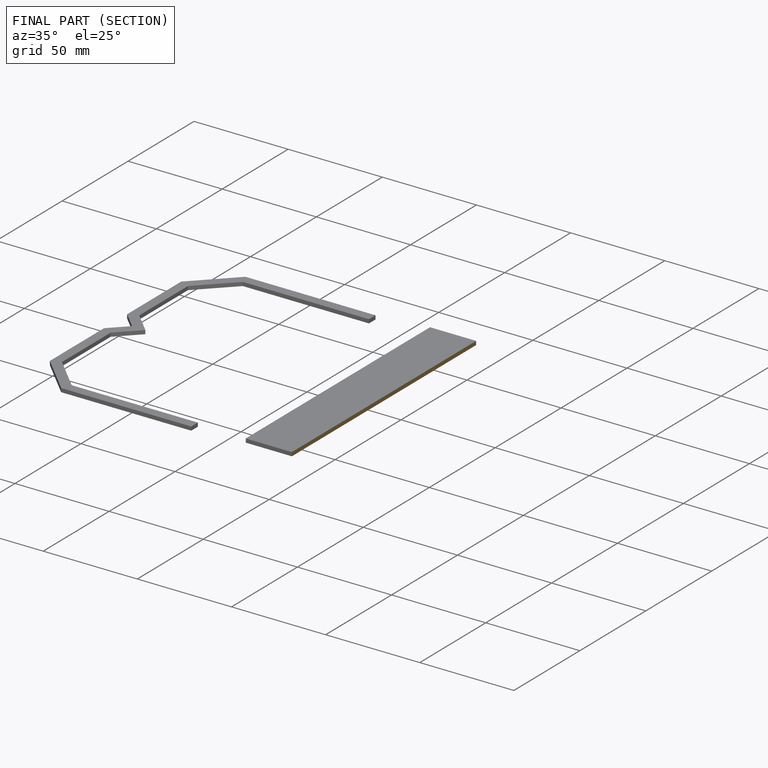
[diagram: finished part — half-section view (interior)]
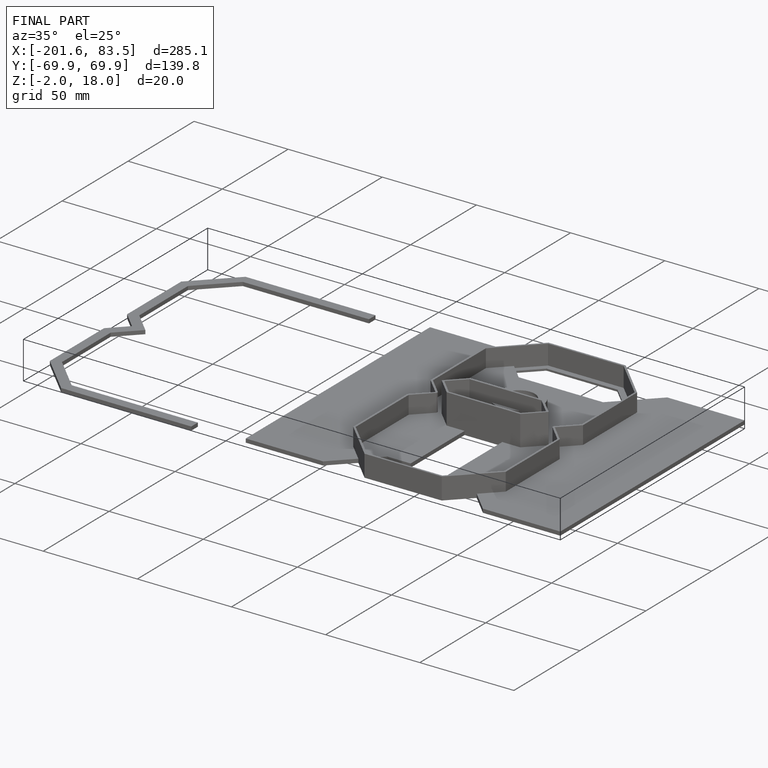
[diagram: finished part — iso view with bounding-box wireframe]
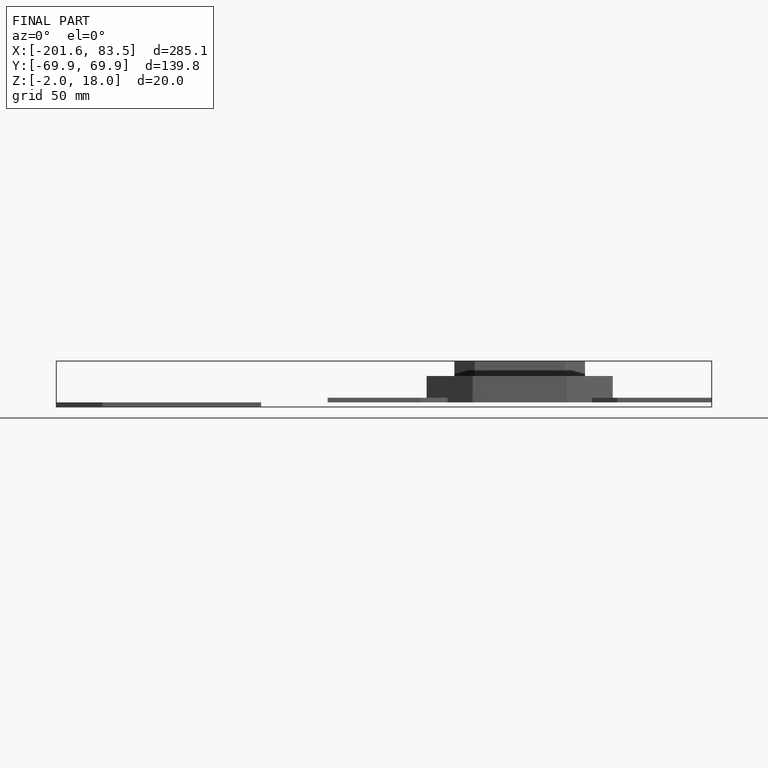
[diagram: finished part — front view with bounding-box wireframe]
